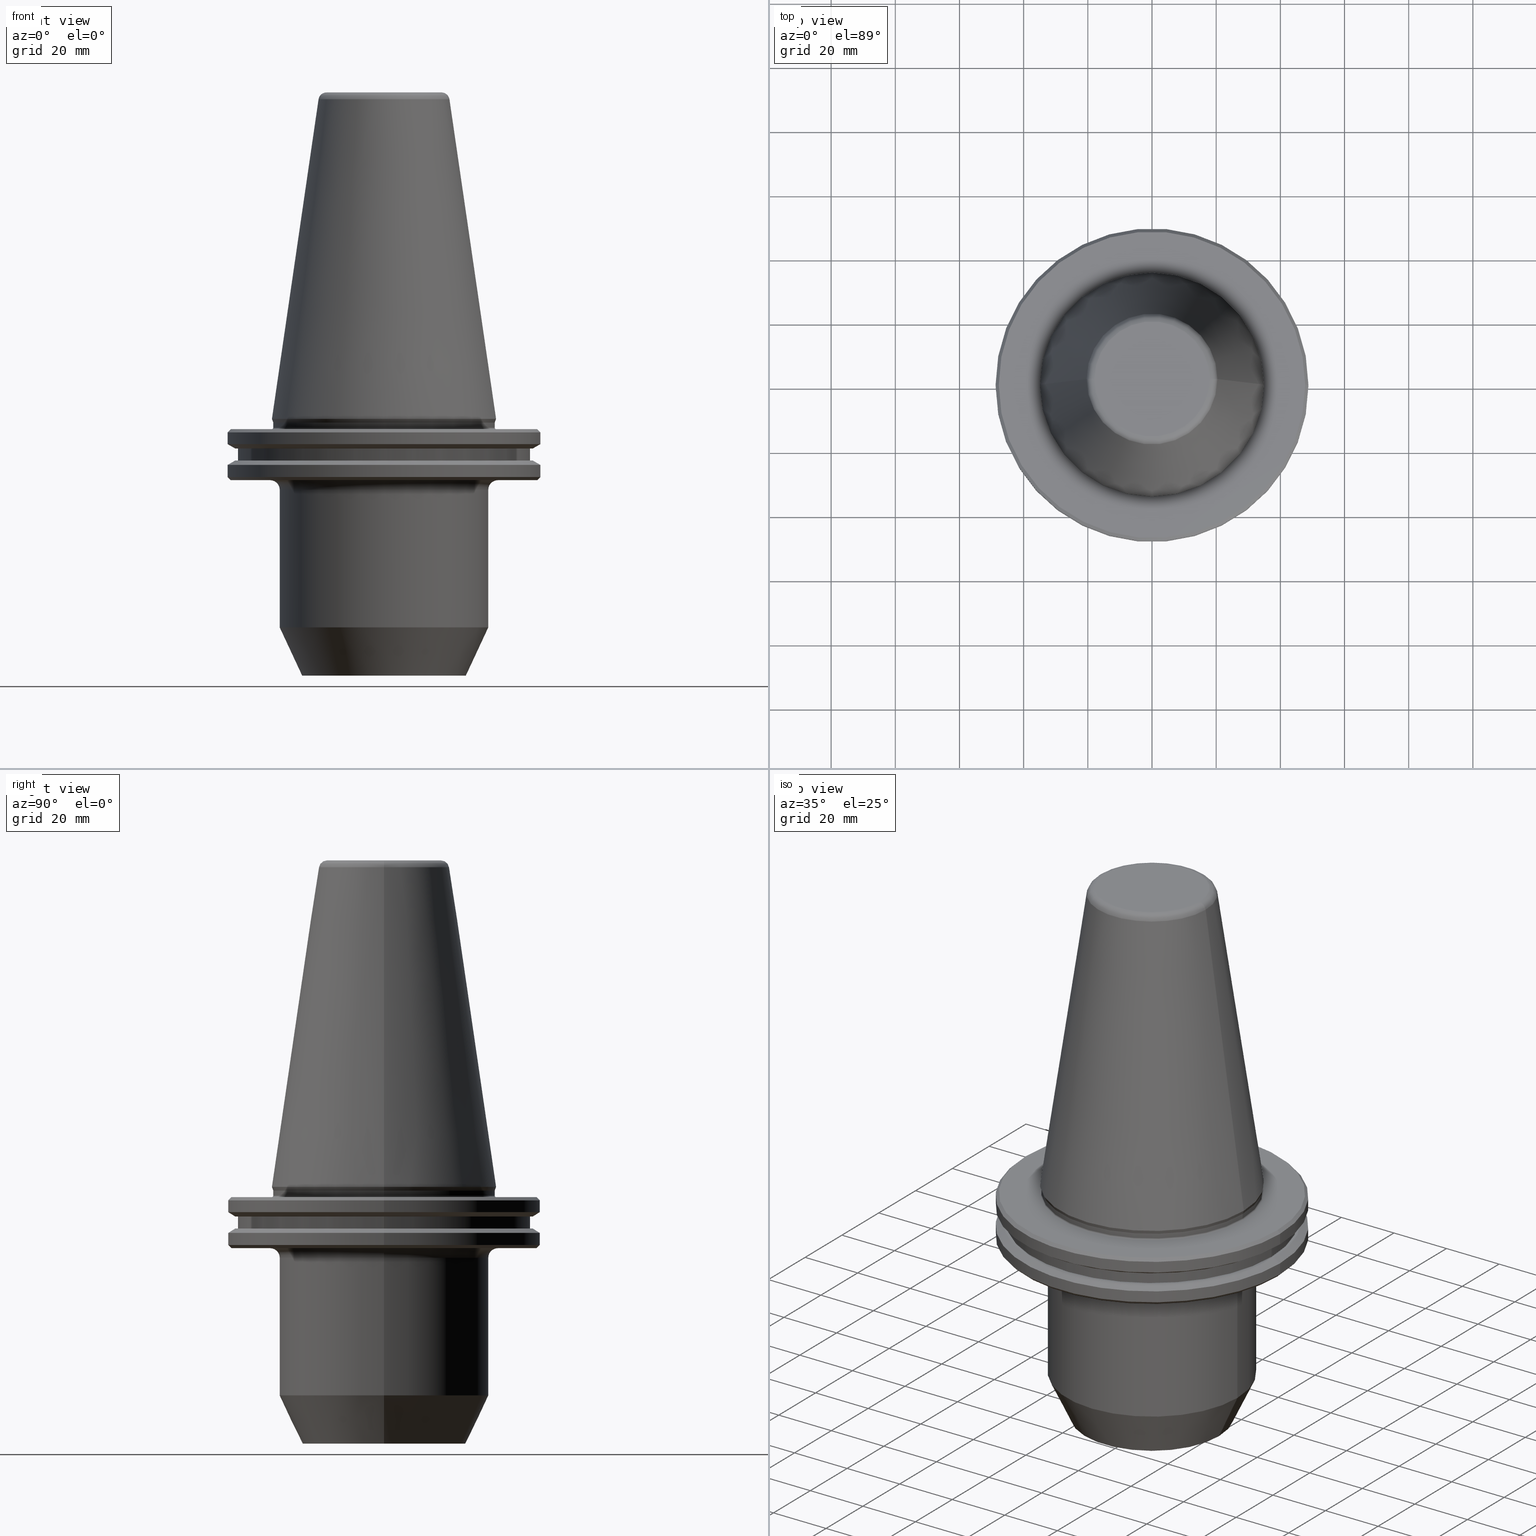
[diagram: canonical four-view strip — front | top / right | iso, engineering-drawing reading convention]
A machine part, canonical four-view strip (front | top / right | iso — engineering-drawing reading convention). The complete STEP part file that produces these views, byte-faithful:
ISO-10303-21;
HEADER;
FILE_DESCRIPTION (( 'STEP AP203' ),
    '1' );
FILE_NAME ('SK50 WE25 080 AD-6.3G15000 SL.STEP',
    '2019-04-30T05:21:31',
    ( '' ),
    ( '' ),
    'SwSTEP 2.0',
    'SolidWorks 2014',
    '' );
FILE_SCHEMA (( 'CONFIG_CONTROL_DESIGN' ));
ENDSEC;

DATA;
#1 = FACE_OUTER_BOUND ( 'NONE', #591, .T. ) ;
#2 = DIRECTION ( 'NONE',  ( 1.000000000000000000, 0.0000000000000000000, 0.0000000000000000000 ) ) ;
#3 = EDGE_LOOP ( 'NONE', ( #590, #41, #19, #282 ) ) ;
#4 = DIRECTION ( 'NONE',  ( 1.000000000000000000, 0.0000000000000000000, 0.0000000000000000000 ) ) ;
#5 = CARTESIAN_POINT ( 'NONE',  ( 0.0000000000000000000, 0.0000000000000000000, -19.09999999999995200 ) ) ;
#6 = EDGE_LOOP ( 'NONE', ( #436, #225, #797, #29 ) ) ;
#7 = DIRECTION ( 'NONE',  ( 1.000000000000000000, 0.0000000000000000000, 0.0000000000000000000 ) ) ;
#8 = ADVANCED_FACE ( 'NONE', ( #663 ), #669, .F. ) ;
#9 = DIRECTION ( 'NONE',  ( 1.000000000000000000, 0.0000000000000000000, 0.0000000000000000000 ) ) ;
#10 = CARTESIAN_POINT ( 'NONE',  ( 0.0000000000000000000, 0.0000000000000000000, -12.97500000000006900 ) ) ;
#11 = DIRECTION ( 'NONE',  ( -0.0000000000000000000, -0.0000000000000000000, 1.000000000000000000 ) ) ;
#12 = CIRCLE ( 'NONE', #231, 48.74999999999995700 ) ;
#13 = CIRCLE ( 'NONE', #919, 34.92500000000009700 ) ;
#14 = EDGE_LOOP ( 'NONE', ( #670, #494, #101, #904 ) ) ;
#15 = ORIENTED_EDGE ( 'NONE', *, *, #104, .T. ) ;
#16 = EDGE_CURVE ( 'NONE', #397, #152, #253, .T. ) ;
#17 = CARTESIAN_POINT ( 'NONE',  ( 0.0000000000000000000, 0.0000000000000000000, -5.551115123125782700E-014 ) ) ;
#18 = EDGE_CURVE ( 'NONE', #886, #219, #463, .T. ) ;
#19 = ORIENTED_EDGE ( 'NONE', *, *, #64, .T. ) ;
#20 = DIRECTION ( 'NONE',  ( 1.000000000000000000, 0.0000000000000000000, 0.0000000000000000000 ) ) ;
#21 = ADVANCED_FACE ( 'NONE', ( #852 ), #24, .T. ) ;
#22 = FACE_OUTER_BOUND ( 'NONE', #860, .T. ) ;
#23 = DIRECTION ( 'NONE',  ( -0.0000000000000000000, -0.0000000000000000000, 1.000000000000000000 ) ) ;
#24 = CYLINDRICAL_SURFACE ( 'NONE', #319, 34.49999999999985100 ) ;
#25 = CARTESIAN_POINT ( 'NONE',  ( 0.0000000000000000000, 0.0000000000000000000, -1.167677903268715700 ) ) ;
#26 = VERTEX_POINT ( 'NONE', #419 ) ;
#27 = ADVANCED_FACE ( 'NONE', ( #828 ), #617, .T. ) ;
#28 = DIRECTION ( 'NONE',  ( 1.000000000000000000, 0.0000000000000000000, 0.0000000000000000000 ) ) ;
#29 = ORIENTED_EDGE ( 'NONE', *, *, #914, .F. ) ;
#30 = DIRECTION ( 'NONE',  ( 0.0000000000000000000, 0.0000000000000000000, -1.000000000000000000 ) ) ;
#31 = DIRECTION ( 'NONE',  ( 0.0000000000000000000, 0.0000000000000000000, -1.000000000000000000 ) ) ;
#32 = DIRECTION ( 'NONE',  ( 1.000000000000000000, 0.0000000000000000000, 0.0000000000000000000 ) ) ;
#33 = TOROIDAL_SURFACE ( 'NONE', #244, 17.92446055806129500, 2.500000000000083000 ) ;
#34 = EDGE_CURVE ( 'NONE', #979, #373, #441, .T. ) ;
#35 = VECTOR ( 'NONE', #714, 1000.000000000000000 ) ;
#36 = ORIENTED_EDGE ( 'NONE', *, *, #138, .F. ) ;
#37 = CARTESIAN_POINT ( 'NONE',  ( 0.0000000000000000000, 0.0000000000000000000, -12.97500000000006900 ) ) ;
#38 = ORIENTED_EDGE ( 'NONE', *, *, #64, .F. ) ;
#39 = AXIS2_PLACEMENT_3D ( 'NONE', #74, #999, #466 ) ;
#40 = DIRECTION ( 'NONE',  ( 0.0000000000000000000, 0.0000000000000000000, -1.000000000000000000 ) ) ;
#41 = ORIENTED_EDGE ( 'NONE', *, *, #454, .F. ) ;
#42 =( GEOMETRIC_REPRESENTATION_CONTEXT ( 3 ) GLOBAL_UNCERTAINTY_ASSIGNED_CONTEXT ( ( #191 ) ) GLOBAL_UNIT_ASSIGNED_CONTEXT ( ( #826, #595, #128 ) ) REPRESENTATION_CONTEXT ( 'NONE', 'WORKASPACE' ) );
#43 = CONICAL_SURFACE ( 'NONE', #90, 48.74999999999995700, 0.7853981633974482800 ) ;
#44 = ADVANCED_FACE ( 'NONE', ( #423 ), #396, .T. ) ;
#45 = CARTESIAN_POINT ( 'NONE',  ( 0.0000000000000000000, 46.37259526419124000, -12.97500000000006900 ) ) ;
#46 = EDGE_CURVE ( 'NONE', #26, #899, #596, .T. ) ;
#47 = VECTOR ( 'NONE', #639, 1000.000000000000000 ) ;
#48 = VECTOR ( 'NONE', #939, 1000.000000000000000 ) ;
#49 = DIRECTION ( 'NONE',  ( 1.000000000000000000, 0.0000000000000000000, 0.0000000000000000000 ) ) ;
#50 = AXIS2_PLACEMENT_3D ( 'NONE', #701, #316, #410 ) ;
#51 = EDGE_LOOP ( 'NONE', ( #36, #815, #411, #761 ) ) ;
#52 = CARTESIAN_POINT ( 'NONE',  ( -34.49999999999975100, 4.225031457058343700E-015, -1.167677903268715700 ) ) ;
#53 = AXIS2_PLACEMENT_3D ( 'NONE', #312, #921, #692 ) ;
#54 = CARTESIAN_POINT ( 'NONE',  ( 34.99999999999992200, 0.0000000000000000000, -2.700000000000091200 ) ) ;
#55 = LOCAL_TIME ( 10, 51, 31.00000000000000000, #261 ) ;
#56 = ORIENTED_EDGE ( 'NONE', *, *, #162, .F. ) ;
#57 = FACE_OUTER_BOUND ( 'NONE', #233, .T. ) ;
#58 = DIRECTION ( 'NONE',  ( -0.0000000000000000000, -0.0000000000000000000, 1.000000000000000000 ) ) ;
#59 = LINE ( 'NONE', #916, #581 ) ;
#60 = ORIENTED_EDGE ( 'NONE', *, *, #864, .T. ) ;
#61 = DIRECTION ( 'NONE',  ( -0.0000000000000000000, -0.0000000000000000000, 1.000000000000000000 ) ) ;
#62 = EDGE_CURVE ( 'NONE', #485, #673, #208, .T. ) ;
#63 = DIRECTION ( 'NONE',  ( -0.1443082234293891500, 0.0000000000000000000, -0.9895327870518760800 ) ) ;
#64 = EDGE_CURVE ( 'NONE', #426, #433, #803, .T. ) ;
#65 = ORIENTED_EDGE ( 'NONE', *, *, #456, .F. ) ;
#66 = AXIS2_PLACEMENT_3D ( 'NONE', #947, #778, #770 ) ;
#67 = CIRCLE ( 'NONE', #656, 48.75000000000018500 ) ;
#68 = ADVANCED_FACE ( 'NONE', ( #1 ), #570, .T. ) ;
#69 = EDGE_CURVE ( 'NONE', #881, #638, #776, .T. ) ;
#70 = DIRECTION ( 'NONE',  ( -0.0000000000000000000, -0.0000000000000000000, 1.000000000000000000 ) ) ;
#71 = EDGE_LOOP ( 'NONE', ( #726, #389, #855, #204 ) ) ;
#72 = CARTESIAN_POINT ( 'NONE',  ( 0.0000000000000000000, 0.0000000000000000000, 101.7499999999999600 ) ) ;
#73 = CARTESIAN_POINT ( 'NONE',  ( 0.0000000000000000000, 0.0000000000000000000, -1.167677903268715700 ) ) ;
#74 = CARTESIAN_POINT ( 'NONE',  ( 35.50000000000000700, 0.0000000000000000000, -22.09999999999995200 ) ) ;
#75 = ORIENTED_EDGE ( 'NONE', *, *, #336, .T. ) ;
#76 = CARTESIAN_POINT ( 'NONE',  ( 47.74999999999973700, 0.0000000000000000000, -19.09999999999995200 ) ) ;
#77 = ORIENTED_EDGE ( 'NONE', *, *, #816, .T. ) ;
#78 = DIRECTION ( 'NONE',  ( 1.000000000000000000, 0.0000000000000000000, 0.0000000000000000000 ) ) ;
#79 = ADVANCED_FACE ( 'NONE', ( #977 ), #187, .F. ) ;
#80 = CALENDAR_DATE ( 2019, 30, 4 ) ;
#81 = FACE_OUTER_BOUND ( 'NONE', #445, .T. ) ;
#82 = DIRECTION ( 'NONE',  ( 1.000000000000000000, 0.0000000000000000000, 0.0000000000000000000 ) ) ;
#83 = FACE_OUTER_BOUND ( 'NONE', #799, .T. ) ;
#84 = DIRECTION ( 'NONE',  ( 1.000000000000000000, 0.0000000000000000000, 0.0000000000000000000 ) ) ;
#85 = VERTEX_POINT ( 'NONE', #814 ) ;
#86 = ADVANCED_FACE ( 'NONE', ( #751 ), #548, .T. ) ;
#87 = DIRECTION ( 'NONE',  ( 1.000000000000000000, 0.0000000000000000000, 0.0000000000000000000 ) ) ;
#88 = EDGE_CURVE ( 'NONE', #673, #485, #228, .T. ) ;
#89 = CARTESIAN_POINT ( 'NONE',  ( -32.50000000000000000, 3.980102097228898600E-015, -64.98845155643312000 ) ) ;
#90 = AXIS2_PLACEMENT_3D ( 'NONE', #628, #40, #394 ) ;
#91 = CARTESIAN_POINT ( 'NONE',  ( 0.0000000000000000000, 0.0000000000000000000, -5.551115123125782700E-014 ) ) ;
#92 = DIRECTION ( 'NONE',  ( 0.8660254037844393700, 1.060575238724907800E-016, -0.4999999999999985000 ) ) ;
#93 = VECTOR ( 'NONE', #475, 1000.000000000000100 ) ;
#94 = FACE_OUTER_BOUND ( 'NONE', #703, .T. ) ;
#95 = VERTEX_POINT ( 'NONE', #787 ) ;
#96 = ADVANCED_FACE ( 'NONE', ( #345 ), #957, .T. ) ;
#97 = CARTESIAN_POINT ( 'NONE',  ( -47.74999999999973700, 5.847688465928579700E-015, -19.09999999999995200 ) ) ;
#98 = ORIENTED_EDGE ( 'NONE', *, *, #383, .T. ) ;
#99 = ADVANCED_FACE ( 'NONE', ( #371 ), #108, .T. ) ;
#100 = AXIS2_PLACEMENT_3D ( 'NONE', #856, #696, #874 ) ;
#101 = ORIENTED_EDGE ( 'NONE', *, *, #843, .F. ) ;
#102 = DIRECTION ( 'NONE',  ( -0.0000000000000000000, -0.0000000000000000000, 1.000000000000000000 ) ) ;
#103 = ORIENTED_EDGE ( 'NONE', *, *, #594, .F. ) ;
#104 = EDGE_CURVE ( 'NONE', #771, #618, #523, .T. ) ;
#105 = PERSON_AND_ORGANIZATION ( #238, #420 ) ;
#106 = VECTOR ( 'NONE', #483, 1000.000000000000000 ) ;
#107 = ADVANCED_FACE ( 'NONE', ( #132 ), #710, .T. ) ;
#108 = CONICAL_SURFACE ( 'NONE', #340, 25.50000000000000000, 0.4363323129985837200 ) ;
#109 = AXIS2_PLACEMENT_3D ( 'NONE', #5, #836, #163 ) ;
#110 = CARTESIAN_POINT ( 'NONE',  ( 0.0000000000000000000, 0.0000000000000000000, -4.199999999999870500 ) ) ;
#111 = ORIENTED_EDGE ( 'NONE', *, *, #880, .T. ) ;
#112 = CARTESIAN_POINT ( 'NONE',  ( 0.0000000000000000000, 0.0000000000000000000, 99.61077055857353500 ) ) ;
#113 = CARTESIAN_POINT ( 'NONE',  ( 25.50000000000000000, 0.0000000000000000000, -79.99999999999998600 ) ) ;
#114 = DIRECTION ( 'NONE',  ( 0.0000000000000000000, -1.000000000000000000, 0.0000000000000000000 ) ) ;
#115 = DIRECTION ( 'NONE',  ( 1.000000000000000000, 0.0000000000000000000, 0.0000000000000000000 ) ) ;
#116 = ADVANCED_FACE ( 'NONE', ( #315, #158 ), #924, .F. ) ;
#117 = CIRCLE ( 'NONE', #122, 48.75000000000018500 ) ;
#118 = EDGE_CURVE ( 'NONE', #881, #564, #500, .T. ) ;
#119 = FACE_OUTER_BOUND ( 'NONE', #996, .T. ) ;
#120 = VERTEX_POINT ( 'NONE', #464 ) ;
#121 = PLANE ( 'NONE',  #262 ) ;
#122 = AXIS2_PLACEMENT_3D ( 'NONE', #980, #135, #446 ) ;
#123 = EDGE_CURVE ( 'NONE', #971, #667, #932, .T. ) ;
#124 = ORIENTED_EDGE ( 'NONE', *, *, #830, .F. ) ;
#125 = ORIENTED_EDGE ( 'NONE', *, *, #358, .T. ) ;
#126 = DIRECTION ( 'NONE',  ( -0.0000000000000000000, -0.0000000000000000000, 1.000000000000000000 ) ) ;
#127 = AXIS2_PLACEMENT_3D ( 'NONE', #37, #953, #851 ) ;
#128 =( NAMED_UNIT ( * ) SI_UNIT ( $, .STERADIAN. ) SOLID_ANGLE_UNIT ( ) );
#129 = COORDINATED_UNIVERSAL_TIME_OFFSET ( 5, 30, .AHEAD. ) ;
#130 = CONICAL_SURFACE ( 'NONE', #331, 46.37259526419079900, 1.047197551196604700 ) ;
#131 = DIRECTION ( 'NONE',  ( 1.000000000000000000, 0.0000000000000000000, 0.0000000000000000000 ) ) ;
#132 = FACE_OUTER_BOUND ( 'NONE', #173, .T. ) ;
#133 = ORIENTED_EDGE ( 'NONE', *, *, #414, .F. ) ;
#134 = ADVANCED_BREP_SHAPE_REPRESENTATION ( 'SK50 WE25 080 AD-6.3G15000 SL', ( #626, #784 ), #42 ) ;
#135 = DIRECTION ( 'NONE',  ( -0.0000000000000000000, -0.0000000000000000000, 1.000000000000000000 ) ) ;
#136 = CARTESIAN_POINT ( 'NONE',  ( 48.75000000000018500, 0.0000000000000000000, 101.7499999999999600 ) ) ;
#137 = MECHANICAL_CONTEXT ( 'NONE', #370, 'mechanical' ) ;
#138 = EDGE_CURVE ( 'NONE', #85, #120, #911, .T. ) ;
#139 = ADVANCED_FACE ( 'NONE', ( #83 ), #266, .T. ) ;
#140 = EDGE_CURVE ( 'NONE', #771, #426, #479, .T. ) ;
#141 = CIRCLE ( 'NONE', #165, 34.49999999999995000 ) ;
#142 = CLOSED_SHELL ( 'NONE', ( #405, #350, #290, #96, #182, #641, #21, #79, #44, #86, #541, #139, #779, #649, #380, #611, #8, #511, #27, #385, #664, #159, #348, #708, #416, #984, #116, #802, #107, #429, #357, #764, #68, #99, #690, #978 ) ) ;
#143 = DIRECTION ( 'NONE',  ( 1.000000000000000000, 0.0000000000000000000, 0.0000000000000000000 ) ) ;
#144 = FACE_OUTER_BOUND ( 'NONE', #267, .T. ) ;
#145 = ORIENTED_EDGE ( 'NONE', *, *, #905, .F. ) ;
#146 = DIRECTION ( 'NONE',  ( -0.0000000000000000000, -0.0000000000000000000, 1.000000000000000000 ) ) ;
#147 = AXIS2_PLACEMENT_3D ( 'NONE', #151, #773, #964 ) ;
#148 = CARTESIAN_POINT ( 'NONE',  ( -46.37259526419079900, 5.679005035844697300E-015, -9.224999999999926800 ) ) ;
#149 = AXIS2_PLACEMENT_3D ( 'NONE', #213, #672, #131 ) ;
#150 = ORIENTED_EDGE ( 'NONE', *, *, #414, .T. ) ;
#151 = CARTESIAN_POINT ( 'NONE',  ( 0.0000000000000000000, 0.0000000000000000000, -2.700000000000091200 ) ) ;
#152 = VERTEX_POINT ( 'NONE', #868 ) ;
#153 = DIRECTION ( 'NONE',  ( -0.0000000000000000000, -0.0000000000000000000, 1.000000000000000000 ) ) ;
#154 = AXIS2_PLACEMENT_3D ( 'NONE', #54, #526, #982 ) ;
#155 = LOCAL_TIME ( 10, 51, 31.00000000000000000, #368 ) ;
#156 = DIRECTION ( 'NONE',  ( 1.000000000000000000, 0.0000000000000000000, 0.0000000000000000000 ) ) ;
#157 = CIRCLE ( 'NONE', #512, 32.50000000000000000 ) ;
#158 = FACE_OUTER_BOUND ( 'NONE', #583, .T. ) ;
#159 = ADVANCED_FACE ( 'NONE', ( #891 ), #652, .T. ) ;
#160 = ORIENTED_EDGE ( 'NONE', *, *, #175, .F. ) ;
#161 = DIRECTION ( 'NONE',  ( 1.000000000000000000, 0.0000000000000000000, 0.0000000000000000000 ) ) ;
#162 = EDGE_CURVE ( 'NONE', #342, #407, #866, .T. ) ;
#163 = DIRECTION ( 'NONE',  ( 1.000000000000000000, 0.0000000000000000000, 0.0000000000000000000 ) ) ;
#164 = DIRECTION ( 'NONE',  ( 1.224646799147353200E-016, 1.000000000000000000, 0.0000000000000000000 ) ) ;
#165 = AXIS2_PLACEMENT_3D ( 'NONE', #435, #970, #359 ) ;
#166 = CARTESIAN_POINT ( 'NONE',  ( -47.74999999999973700, 5.908920805885974100E-015, -19.09999999999995200 ) ) ;
#167 = DIRECTION ( 'NONE',  ( -0.0000000000000000000, -0.0000000000000000000, 1.000000000000000000 ) ) ;
#168 = CARTESIAN_POINT ( 'NONE',  ( 48.75000000000018500, 5.970153145843369200E-015, -14.34759526419204800 ) ) ;
#169 = CIRCLE ( 'NONE', #198, 3.000000000000002700 ) ;
#170 = DIRECTION ( 'NONE',  ( 1.000000000000000000, 0.0000000000000000000, 0.0000000000000000000 ) ) ;
#171 = LINE ( 'NONE', #497, #355 ) ;
#172 = CARTESIAN_POINT ( 'NONE',  ( 0.0000000000000000000, 0.0000000000000000000, -1.167677903268715700 ) ) ;
#173 = EDGE_LOOP ( 'NONE', ( #609, #60, #920, #327 ) ) ;
#174 = CARTESIAN_POINT ( 'NONE',  ( -32.50000000000000000, 3.980102097228898600E-015, -22.09999999999995200 ) ) ;
#175 = EDGE_CURVE ( 'NONE', #536, #612, #678, .T. ) ;
#176 = AXIS2_PLACEMENT_3D ( 'NONE', #584, #657, #505 ) ;
#177 = EDGE_LOOP ( 'NONE', ( #291, #489, #77, #229 ) ) ;
#178 = VERTEX_POINT ( 'NONE', #552 ) ;
#179 = DIRECTION ( 'NONE',  ( -0.0000000000000000000, -0.0000000000000000000, 1.000000000000000000 ) ) ;
#180 = DIRECTION ( 'NONE',  ( 1.000000000000000000, 0.0000000000000000000, 0.0000000000000000000 ) ) ;
#181 = ORIENTED_EDGE ( 'NONE', *, *, #69, .F. ) ;
#182 = ADVANCED_FACE ( 'NONE', ( #450 ), #430, .T. ) ;
#183 = CALENDAR_DATE ( 2019, 30, 4 ) ;
#184 = AXIS2_PLACEMENT_3D ( 'NONE', #269, #114, #895 ) ;
#185 = CARTESIAN_POINT ( 'NONE',  ( 0.0000000000000000000, 0.0000000000000000000, -4.199999999999870500 ) ) ;
#186 = LINE ( 'NONE', #785, #106 ) ;
#187 = TOROIDAL_SURFACE ( 'NONE', #147, 34.99999999999992200, 0.4999999999999726900 ) ;
#188 = VERTEX_POINT ( 'NONE', #527 ) ;
#189 = CARTESIAN_POINT ( 'NONE',  ( -34.49999999999985100, 4.225031457058350000E-015, 101.7499999999999600 ) ) ;
#190 = DIRECTION ( 'NONE',  ( -0.0000000000000000000, -0.0000000000000000000, 1.000000000000000000 ) ) ;
#191 = UNCERTAINTY_MEASURE_WITH_UNIT (LENGTH_MEASURE( 1.000000000000000100E-005 ), #826, 'distance_accuracy_value', 'NONE');
#192 = VERTEX_POINT ( 'NONE', #113 ) ;
#193 = CC_DESIGN_PERSON_AND_ORGANIZATION_ASSIGNMENT ( #105, #798, ( #636 ) ) ;
#194 = DIRECTION ( 'NONE',  ( -0.0000000000000000000, -0.0000000000000000000, 1.000000000000000000 ) ) ;
#195 = EDGE_CURVE ( 'NONE', #152, #899, #630, .T. ) ;
#196 = TOROIDAL_SURFACE ( 'NONE', #215, 34.99999999999992200, 0.4999999999999726900 ) ;
#197 = CIRCLE ( 'NONE', #839, 45.50000000000020600 ) ;
#198 = AXIS2_PLACEMENT_3D ( 'NONE', #738, #503, #579 ) ;
#199 = CARTESIAN_POINT ( 'NONE',  ( 35.50000000000000700, 0.0000000000000000000, -19.09999999999995200 ) ) ;
#200 = EDGE_LOOP ( 'NONE', ( #949, #513, #967, #145 ) ) ;
#201 = AXIS2_PLACEMENT_3D ( 'NONE', #112, #194, #32 ) ;
#202 = DATE_TIME_ROLE ( 'creation_date' ) ;
#203 = CARTESIAN_POINT ( 'NONE',  ( 48.74999999999995700, 5.970153145843342400E-015, -4.199999999999870500 ) ) ;
#204 = ORIENTED_EDGE ( 'NONE', *, *, #493, .F. ) ;
#205 = EDGE_LOOP ( 'NONE', ( #469, #243 ) ) ;
#206 = PERSON_AND_ORGANIZATION ( #238, #420 ) ;
#207 = CIRCLE ( 'NONE', #610, 32.50000000000000000 ) ;
#208 = CIRCLE ( 'NONE', #360, 46.37259526419124000 ) ;
#209 = ORIENTED_EDGE ( 'NONE', *, *, #923, .T. ) ;
#210 = AXIS2_PLACEMENT_3D ( 'NONE', #10, #702, #322 ) ;
#211 = DIRECTION ( 'NONE',  ( -0.8660254037844421500, 1.060575238724911200E-016, 0.4999999999999939500 ) ) ;
#212 = ORIENTED_EDGE ( 'NONE', *, *, #456, .T. ) ;
#213 = CARTESIAN_POINT ( 'NONE',  ( 0.0000000000000000000, 0.0000000000000000000, -19.09999999999995200 ) ) ;
#214 = PRODUCT_DEFINITION_SHAPE ( 'NONE', 'NONE',  #506 ) ;
#215 = AXIS2_PLACEMENT_3D ( 'NONE', #846, #297, #221 ) ;
#216 = CARTESIAN_POINT ( 'NONE',  ( 34.49999999999975100, 0.0000000000000000000, -1.167677903268715700 ) ) ;
#217 = VECTOR ( 'NONE', #562, 1000.000000000000000 ) ;
#218 = LINE ( 'NONE', #913, #813 ) ;
#219 = VERTEX_POINT ( 'NONE', #983 ) ;
#220 = ORIENTED_EDGE ( 'NONE', *, *, #454, .T. ) ;
#221 = DIRECTION ( 'NONE',  ( 1.000000000000000000, 0.0000000000000000000, 0.0000000000000000000 ) ) ;
#222 = CARTESIAN_POINT ( 'NONE',  ( 0.0000000000000000000, 0.0000000000000000000, -22.09999999999995200 ) ) ;
#223 = CARTESIAN_POINT ( 'NONE',  ( 0.0000000000000000000, 0.0000000000000000000, 99.25000000000000000 ) ) ;
#224 = AXIS2_PLACEMENT_3D ( 'NONE', #110, #960, #735 ) ;
#225 = ORIENTED_EDGE ( 'NONE', *, *, #594, .T. ) ;
#226 = CIRCLE ( 'NONE', #565, 20.39829252569114000 ) ;
#227 = PLANE ( 'NONE',  #387 ) ;
#228 = CIRCLE ( 'NONE', #127, 46.37259526419124000 ) ;
#229 = ORIENTED_EDGE ( 'NONE', *, *, #374, .T. ) ;
#230 = CARTESIAN_POINT ( 'NONE',  ( 0.0000000000000000000, 46.37259526419079900, -9.224999999999926800 ) ) ;
#231 = AXIS2_PLACEMENT_3D ( 'NONE', #459, #918, #382 ) ;
#232 = DIRECTION ( 'NONE',  ( -0.0000000000000000000, -0.0000000000000000000, 1.000000000000000000 ) ) ;
#233 = EDGE_LOOP ( 'NONE', ( #418, #572 ) ) ;
#234 = CARTESIAN_POINT ( 'NONE',  ( 0.0000000000000000000, 0.0000000000000000000, 101.7499999999999600 ) ) ;
#235 = ORIENTED_EDGE ( 'NONE', *, *, #298, .T. ) ;
#236 = APPLICATION_CONTEXT ( 'configuration controlled 3d designs of mechanical parts and assemblies' ) ;
#237 = LINE ( 'NONE', #717, #449 ) ;
#238 = PERSON ( 'UNSPECIFIED', 'UNSPECIFIED', 'UNSPECIFIED', ('UNSPECIFIED'), ('UNSPECIFIED'), ('UNSPECIFIED') ) ;
#239 = CARTESIAN_POINT ( 'NONE',  ( 0.0000000000000000000, 0.0000000000000000000, 101.7499999999999600 ) ) ;
#240 = CIRCLE ( 'NONE', #908, 34.49999999999975100 ) ;
#241 = ORIENTED_EDGE ( 'NONE', *, *, #374, .F. ) ;
#242 = EDGE_CURVE ( 'NONE', #192, #248, #838, .T. ) ;
#243 = ORIENTED_EDGE ( 'NONE', *, *, #358, .F. ) ;
#244 = AXIS2_PLACEMENT_3D ( 'NONE', #223, #934, #472 ) ;
#245 = DIRECTION ( 'NONE',  ( 1.000000000000000000, 0.0000000000000000000, 0.0000000000000000000 ) ) ;
#246 = EDGE_CURVE ( 'NONE', #447, #258, #240, .T. ) ;
#247 = DIRECTION ( 'NONE',  ( 1.000000000000000000, 0.0000000000000000000, 0.0000000000000000000 ) ) ;
#248 = VERTEX_POINT ( 'NONE', #451 ) ;
#249 = ORIENTED_EDGE ( 'NONE', *, *, #294, .F. ) ;
#250 = CARTESIAN_POINT ( 'NONE',  ( -48.75000000000018500, 5.970153145843369200E-015, -18.09999999999950400 ) ) ;
#251 = CONICAL_SURFACE ( 'NONE', #647, 48.75000000000018500, 1.047197551196599400 ) ;
#252 = DIRECTION ( 'NONE',  ( -0.0000000000000000000, -0.0000000000000000000, 1.000000000000000000 ) ) ;
#253 = CIRCLE ( 'NONE', #962, 48.75000000000018500 ) ;
#254 = DIRECTION ( 'NONE',  ( -0.0000000000000000000, -0.0000000000000000000, 1.000000000000000000 ) ) ;
#255 = EDGE_LOOP ( 'NONE', ( #563, #946, #111, #892 ) ) ;
#256 = DIRECTION ( 'NONE',  ( 0.0000000000000000000, 0.0000000000000000000, -1.000000000000000000 ) ) ;
#257 = AXIS2_PLACEMENT_3D ( 'NONE', #635, #365, #328 ) ;
#258 = VERTEX_POINT ( 'NONE', #216 ) ;
#259 = EDGE_CURVE ( 'NONE', #544, #766, #289, .T. ) ;
#260 = VERTEX_POINT ( 'NONE', #470 ) ;
#261 = COORDINATED_UNIVERSAL_TIME_OFFSET ( 5, 30, .AHEAD. ) ;
#262 = AXIS2_PLACEMENT_3D ( 'NONE', #386, #303, #688 ) ;
#263 = ORIENTED_EDGE ( 'NONE', *, *, #894, .F. ) ;
#264 = CONICAL_SURFACE ( 'NONE', #353, 34.49999999999975100, 0.3490658503990017300 ) ;
#265 = SECURITY_CLASSIFICATION ( '', '', #973 ) ;
#266 = CYLINDRICAL_SURFACE ( 'NONE', #1001, 45.50000000000020600 ) ;
#267 = EDGE_LOOP ( 'NONE', ( #631, #944 ) ) ;
#268 = DIRECTION ( 'NONE',  ( -0.0000000000000000000, -0.0000000000000000000, 1.000000000000000000 ) ) ;
#269 = CARTESIAN_POINT ( 'NONE',  ( 17.92446055806129500, 0.0000000000000000000, 99.25000000000000000 ) ) ;
#270 = EDGE_LOOP ( 'NONE', ( #133, #933, #212, #809 ) ) ;
#271 = LINE ( 'NONE', #97, #47 ) ;
#272 = AXIS2_PLACEMENT_3D ( 'NONE', #277, #942, #9 ) ;
#273 = DATE_TIME_ROLE ( 'classification_date' ) ;
#274 = CC_DESIGN_DATE_AND_TIME_ASSIGNMENT ( #889, #273, ( #265 ) ) ;
#275 = EDGE_LOOP ( 'NONE', ( #491, #276 ) ) ;
#276 = ORIENTED_EDGE ( 'NONE', *, *, #62, .T. ) ;
#277 = CARTESIAN_POINT ( 'NONE',  ( 0.0000000000000000000, 0.0000000000000000000, -9.224999999999926800 ) ) ;
#278 = PERSON_AND_ORGANIZATION_ROLE ( 'creator' ) ;
#279 = DIRECTION ( 'NONE',  ( -1.000000000000000000, 0.0000000000000000000, -0.0000000000000000000 ) ) ;
#280 = CARTESIAN_POINT ( 'NONE',  ( 0.0000000000000000000, 0.0000000000000000000, -7.852404735807838600 ) ) ;
#281 = AXIS2_PLACEMENT_3D ( 'NONE', #45, #995, #968 ) ;
#282 = ORIENTED_EDGE ( 'NONE', *, *, #493, .T. ) ;
#283 = DIRECTION ( 'NONE',  ( -0.0000000000000000000, -0.0000000000000000000, 1.000000000000000000 ) ) ;
#284 = ORIENTED_EDGE ( 'NONE', *, *, #88, .F. ) ;
#285 = DIRECTION ( 'NONE',  ( -0.0000000000000000000, -0.0000000000000000000, 1.000000000000000000 ) ) ;
#286 = EDGE_CURVE ( 'NONE', #248, #979, #218, .T. ) ;
#287 = LOCAL_TIME ( 10, 51, 31.00000000000000000, #498 ) ;
#288 = CYLINDRICAL_SURFACE ( 'NONE', #295, 48.75000000000018500 ) ;
#289 = CIRCLE ( 'NONE', #896, 45.50000000000020600 ) ;
#290 = ADVANCED_FACE ( 'NONE', ( #409 ), #987, .T. ) ;
#291 = ORIENTED_EDGE ( 'NONE', *, *, #575, .F. ) ;
#292 = DIRECTION ( 'NONE',  ( -0.0000000000000000000, -0.0000000000000000000, 1.000000000000000000 ) ) ;
#293 = DIRECTION ( 'NONE',  ( -1.000000000000000000, 0.0000000000000000000, 0.0000000000000000000 ) ) ;
#294 = EDGE_CURVE ( 'NONE', #766, #544, #197, .T. ) ;
#295 = AXIS2_PLACEMENT_3D ( 'NONE', #72, #922, #926 ) ;
#296 = AXIS2_PLACEMENT_3D ( 'NONE', #833, #697, #279 ) ;
#297 = DIRECTION ( 'NONE',  ( -0.0000000000000000000, -0.0000000000000000000, 1.000000000000000000 ) ) ;
#298 = EDGE_CURVE ( 'NONE', #260, #95, #13, .T. ) ;
#299 = CIRCLE ( 'NONE', #109, 35.50000000000000700 ) ;
#300 = CONICAL_SURFACE ( 'NONE', #768, 25.50000000000000000, 0.4363323129985837200 ) ;
#301 = ORIENTED_EDGE ( 'NONE', *, *, #259, .T. ) ;
#302 = AXIS2_PLACEMENT_3D ( 'NONE', #234, #598, #810 ) ;
#303 = DIRECTION ( 'NONE',  ( 0.0000000000000000000, -0.0000000000000000000, 1.000000000000000000 ) ) ;
#304 = AXIS2_PLACEMENT_3D ( 'NONE', #337, #792, #247 ) ;
#305 = EDGE_CURVE ( 'NONE', #407, #618, #59, .T. ) ;
#306 = DIRECTION ( 'NONE',  ( 1.000000000000000000, 0.0000000000000000000, 0.0000000000000000000 ) ) ;
#307 = VERTEX_POINT ( 'NONE', #884 ) ;
#308 = CARTESIAN_POINT ( 'NONE',  ( 0.0000000000000000000, 47.74999999999973700, -19.09999999999995200 ) ) ;
#309 = AXIS2_PLACEMENT_3D ( 'NONE', #679, #931, #871 ) ;
#310 = ORIENTED_EDGE ( 'NONE', *, *, #525, .T. ) ;
#311 = APPROVAL_DATE_TIME ( #519, #695 ) ;
#312 = CARTESIAN_POINT ( 'NONE',  ( 0.0000000000000000000, 0.0000000000000000000, 99.25000000000000000 ) ) ;
#313 = FACE_OUTER_BOUND ( 'NONE', #832, .T. ) ;
#314 = EDGE_CURVE ( 'NONE', #342, #433, #788, .T. ) ;
#315 = FACE_BOUND ( 'NONE', #205, .T. ) ;
#316 = DIRECTION ( 'NONE',  ( -0.0000000000000000000, -0.0000000000000000000, 1.000000000000000000 ) ) ;
#317 = ORIENTED_EDGE ( 'NONE', *, *, #242, .T. ) ;
#318 = CARTESIAN_POINT ( 'NONE',  ( 0.0000000000000000000, 0.0000000000000000000, -19.09999999999995200 ) ) ;
#319 = AXIS2_PLACEMENT_3D ( 'NONE', #372, #102, #399 ) ;
#320 = CARTESIAN_POINT ( 'NONE',  ( 32.50000000000000000, 0.0000000000000000000, -64.98845155643312000 ) ) ;
#321 = CARTESIAN_POINT ( 'NONE',  ( 45.50000000000020600, 0.0000000000000000000, -12.97500000000006900 ) ) ;
#322 = DIRECTION ( 'NONE',  ( 1.000000000000000000, 0.0000000000000000000, 0.0000000000000000000 ) ) ;
#323 = DIRECTION ( 'NONE',  ( -0.3420201433257963300, 4.188538737678555300E-017, 0.9396926207858620200 ) ) ;
#324 = VECTOR ( 'NONE', #509, 1000.000000000000000 ) ;
#325 = DIRECTION ( 'NONE',  ( -0.0000000000000000000, -0.0000000000000000000, 1.000000000000000000 ) ) ;
#326 = FACE_OUTER_BOUND ( 'NONE', #177, .T. ) ;
#327 = ORIENTED_EDGE ( 'NONE', *, *, #246, .F. ) ;
#328 = DIRECTION ( 'NONE',  ( -1.000000000000000000, 0.0000000000000000000, 0.0000000000000000000 ) ) ;
#329 = EDGE_CURVE ( 'NONE', #564, #373, #378, .T. ) ;
#330 = CARTESIAN_POINT ( 'NONE',  ( 0.0000000000000000000, 0.0000000000000000000, -22.09999999999995200 ) ) ;
#331 = AXIS2_PLACEMENT_3D ( 'NONE', #936, #404, #553 ) ;
#332 = ORIENTED_EDGE ( 'NONE', *, *, #794, .F. ) ;
#333 = DIRECTION ( 'NONE',  ( -0.0000000000000000000, -0.0000000000000000000, 1.000000000000000000 ) ) ;
#334 = EDGE_CURVE ( 'NONE', #188, #886, #760, .T. ) ;
#335 = DIRECTION ( 'NONE',  ( 1.000000000000000000, 0.0000000000000000000, 0.0000000000000000000 ) ) ;
#336 = EDGE_CURVE ( 'NONE', #971, #544, #171, .T. ) ;
#337 = CARTESIAN_POINT ( 'NONE',  ( 0.0000000000000000000, 0.0000000000000000000, 101.7500000000000900 ) ) ;
#338 = ORIENTED_EDGE ( 'NONE', *, *, #140, .F. ) ;
#339 = DIRECTION ( 'NONE',  ( 1.000000000000000000, 0.0000000000000000000, 0.0000000000000000000 ) ) ;
#340 = AXIS2_PLACEMENT_3D ( 'NONE', #484, #412, #388 ) ;
#341 = CARTESIAN_POINT ( 'NONE',  ( 0.0000000000000000000, 0.0000000000000000000, -22.09999999999995200 ) ) ;
#342 = VERTEX_POINT ( 'NONE', #530 ) ;
#343 = APPROVAL_PERSON_ORGANIZATION ( #545, #695, #366 ) ;
#344 = CIRCLE ( 'NONE', #304, 17.92446055806129500 ) ;
#345 = FACE_OUTER_BOUND ( 'NONE', #632, .T. ) ;
#346 = CARTESIAN_POINT ( 'NONE',  ( 0.0000000000000000000, 0.0000000000000000000, -19.09999999999995200 ) ) ;
#347 = ORIENTED_EDGE ( 'NONE', *, *, #18, .T. ) ;
#348 = ADVANCED_FACE ( 'NONE', ( #144, #603 ), #781, .F. ) ;
#349 = EDGE_CURVE ( 'NONE', #85, #447, #535, .T. ) ;
#350 = ADVANCED_FACE ( 'NONE', ( #943 ), #300, .T. ) ;
#351 = EDGE_CURVE ( 'NONE', #307, #120, #508, .T. ) ;
#352 = CARTESIAN_POINT ( 'NONE',  ( 0.0000000000000000000, 0.0000000000000000000, -19.09999999999995200 ) ) ;
#353 = AXIS2_PLACEMENT_3D ( 'NONE', #73, #232, #465 ) ;
#354 = CIRCLE ( 'NONE', #176, 34.49999999999975100 ) ;
#355 = VECTOR ( 'NONE', #574, 1000.000000000000000 ) ;
#356 = VERTEX_POINT ( 'NONE', #559 ) ;
#357 = ADVANCED_FACE ( 'NONE', ( #326 ), #687, .T. ) ;
#358 = EDGE_CURVE ( 'NONE', #120, #307, #898, .T. ) ;
#359 = DIRECTION ( 'NONE',  ( 1.000000000000000000, 0.0000000000000000000, 0.0000000000000000000 ) ) ;
#360 = AXIS2_PLACEMENT_3D ( 'NONE', #709, #928, #4 ) ;
#361 = APPROVAL_STATUS ( 'not_yet_approved' ) ;
#362 = ORIENTED_EDGE ( 'NONE', *, *, #794, .T. ) ;
#363 = APPROVAL ( #361, 'UNSPECIFIED' ) ;
#364 = DESIGN_CONTEXT ( 'detailed design', #236, 'design' ) ;
#365 = DIRECTION ( 'NONE',  ( 0.0000000000000000000, 0.0000000000000000000, -1.000000000000000000 ) ) ;
#366 = APPROVAL_ROLE ( '' ) ;
#367 = ORIENTED_EDGE ( 'NONE', *, *, #329, .T. ) ;
#368 = COORDINATED_UNIVERSAL_TIME_OFFSET ( 5, 30, .AHEAD. ) ;
#369 = CIRCLE ( 'NONE', #495, 46.37259526419079900 ) ;
#370 = APPLICATION_CONTEXT ( 'configuration controlled 3d designs of mechanical parts and assemblies' ) ;
#371 = FACE_OUTER_BOUND ( 'NONE', #623, .T. ) ;
#372 = CARTESIAN_POINT ( 'NONE',  ( 0.0000000000000000000, 0.0000000000000000000, 101.7499999999999600 ) ) ;
#373 = VERTEX_POINT ( 'NONE', #174 ) ;
#374 = EDGE_CURVE ( 'NONE', #95, #260, #722, .T. ) ;
#375 = VECTOR ( 'NONE', #532, 999.9999999999998900 ) ;
#376 = ORIENTED_EDGE ( 'NONE', *, *, #843, .T. ) ;
#377 = DIRECTION ( 'NONE',  ( 1.000000000000000000, 0.0000000000000000000, 0.0000000000000000000 ) ) ;
#378 = CIRCLE ( 'NONE', #818, 32.50000000000000000 ) ;
#379 = EDGE_LOOP ( 'NONE', ( #941, #558, #555, #56 ) ) ;
#380 = ADVANCED_FACE ( 'NONE', ( #119 ), #879, .T. ) ;
#381 = DIRECTION ( 'NONE',  ( 1.000000000000000000, 0.0000000000000000000, 0.0000000000000000000 ) ) ;
#382 = DIRECTION ( 'NONE',  ( 1.000000000000000000, 0.0000000000000000000, 0.0000000000000000000 ) ) ;
#383 = EDGE_CURVE ( 'NONE', #152, #397, #67, .T. ) ;
#384 = ORIENTED_EDGE ( 'NONE', *, *, #140, .T. ) ;
#385 = ADVANCED_FACE ( 'NONE', ( #742 ), #251, .T. ) ;
#386 = CARTESIAN_POINT ( 'NONE',  ( 0.0000000000000000000, 0.0000000000000000000, -79.99999999999998600 ) ) ;
#387 = AXIS2_PLACEMENT_3D ( 'NONE', #308, #769, #306 ) ;
#388 = DIRECTION ( 'NONE',  ( 1.000000000000000000, 0.0000000000000000000, 0.0000000000000000000 ) ) ;
#389 = ORIENTED_EDGE ( 'NONE', *, *, #162, .T. ) ;
#390 = ORIENTED_EDGE ( 'NONE', *, *, #605, .T. ) ;
#391 = CARTESIAN_POINT ( 'NONE',  ( 48.74999999999995700, 0.0000000000000000000, -4.199999999999870500 ) ) ;
#392 = EDGE_CURVE ( 'NONE', #356, #805, #661, .T. ) ;
#393 = LOCAL_TIME ( 10, 51, 31.00000000000000000, #592 ) ;
#394 = DIRECTION ( 'NONE',  ( -1.000000000000000000, 0.0000000000000000000, 0.0000000000000000000 ) ) ;
#395 = LINE ( 'NONE', #872, #976 ) ;
#396 = CONICAL_SURFACE ( 'NONE', #902, 48.74999999999995700, 0.7853981633974482800 ) ;
#397 = VERTEX_POINT ( 'NONE', #250 ) ;
#398 = CARTESIAN_POINT ( 'NONE',  ( 0.0000000000000000000, 0.0000000000000000000, 158.1180504483445200 ) ) ;
#399 = DIRECTION ( 'NONE',  ( 1.000000000000000000, 0.0000000000000000000, 0.0000000000000000000 ) ) ;
#400 = CARTESIAN_POINT ( 'NONE',  ( 47.74999999999995700, 5.908920805885974100E-015, -3.199999999999869600 ) ) ;
#401 = ORIENTED_EDGE ( 'NONE', *, *, #821, .T. ) ;
#402 = DIRECTION ( 'NONE',  ( 0.0000000000000000000, 0.0000000000000000000, -1.000000000000000000 ) ) ;
#403 = CARTESIAN_POINT ( 'NONE',  ( 0.0000000000000000000, 0.0000000000000000000, -5.551115123125782700E-014 ) ) ;
#404 = DIRECTION ( 'NONE',  ( -0.0000000000000000000, -0.0000000000000000000, 1.000000000000000000 ) ) ;
#405 = ADVANCED_FACE ( 'NONE', ( #94 ), #462, .F. ) ;
#406 = VECTOR ( 'NONE', #211, 1000.000000000000000 ) ;
#407 = VERTEX_POINT ( 'NONE', #415 ) ;
#408 = EDGE_CURVE ( 'NONE', #192, #533, #488, .T. ) ;
#409 = FACE_OUTER_BOUND ( 'NONE', #200, .T. ) ;
#410 = DIRECTION ( 'NONE',  ( 1.000000000000000000, 0.0000000000000000000, 0.0000000000000000000 ) ) ;
#411 = ORIENTED_EDGE ( 'NONE', *, *, #873, .T. ) ;
#412 = DIRECTION ( 'NONE',  ( -0.0000000000000000000, -0.0000000000000000000, 1.000000000000000000 ) ) ;
#413 = DIRECTION ( 'NONE',  ( -0.0000000000000000000, -0.0000000000000000000, 1.000000000000000000 ) ) ;
#414 = EDGE_CURVE ( 'NONE', #536, #397, #271, .T. ) ;
#415 = CARTESIAN_POINT ( 'NONE',  ( 48.74999999999995700, 0.0000000000000000000, -7.852404735807838600 ) ) ;
#416 = ADVANCED_FACE ( 'NONE', ( #640 ), #825, .T. ) ;
#417 = ORIENTED_EDGE ( 'NONE', *, *, #734, .T. ) ;
#418 = ORIENTED_EDGE ( 'NONE', *, *, #242, .F. ) ;
#419 = CARTESIAN_POINT ( 'NONE',  ( -48.75000000000018500, 5.970153145843369200E-015, -14.34759526419204800 ) ) ;
#420 = ORGANIZATION ( 'UNSPECIFIED', 'UNSPECIFIED', '' ) ;
#421 = CARTESIAN_POINT ( 'NONE',  ( -48.74999999999995700, 5.970153145843342400E-015, -4.199999999999870500 ) ) ;
#422 = LINE ( 'NONE', #425, #801 ) ;
#423 = FACE_OUTER_BOUND ( 'NONE', #888, .T. ) ;
#424 = ORIENTED_EDGE ( 'NONE', *, *, #575, .T. ) ;
#425 = CARTESIAN_POINT ( 'NONE',  ( 47.74999999999973700, 0.0000000000000000000, -19.09999999999995200 ) ) ;
#426 = VERTEX_POINT ( 'NONE', #665 ) ;
#427 = CARTESIAN_POINT ( 'NONE',  ( 0.0000000000000000000, 0.0000000000000000000, -3.199999999999869600 ) ) ;
#428 = FACE_OUTER_BOUND ( 'NONE', #51, .T. ) ;
#429 = ADVANCED_FACE ( 'NONE', ( #22 ), #1000, .T. ) ;
#430 = CONICAL_SURFACE ( 'NONE', #969, 34.92500000000009700, 0.1448138426689039600 ) ;
#431 = EDGE_CURVE ( 'NONE', #373, #564, #207, .T. ) ;
#432 = ORIENTED_EDGE ( 'NONE', *, *, #734, .F. ) ;
#433 = VERTEX_POINT ( 'NONE', #421 ) ;
#434 = DIRECTION ( 'NONE',  ( 1.000000000000000000, 0.0000000000000000000, 0.0000000000000000000 ) ) ;
#435 = CARTESIAN_POINT ( 'NONE',  ( 0.0000000000000000000, 0.0000000000000000000, -2.700000000000091200 ) ) ;
#436 = ORIENTED_EDGE ( 'NONE', *, *, #62, .F. ) ;
#437 = AXIS2_PLACEMENT_3D ( 'NONE', #619, #153, #699 ) ;
#438 = PERSON_AND_ORGANIZATION_ROLE ( 'classification_officer' ) ;
#439 = CIRCLE ( 'NONE', #546, 47.74999999999995700 ) ;
#440 = AXIS2_PLACEMENT_3D ( 'NONE', #752, #285, #434 ) ;
#441 = LINE ( 'NONE', #950, #643 ) ;
#442 = EDGE_CURVE ( 'NONE', #680, #188, #226, .T. ) ;
#443 = CARTESIAN_POINT ( 'NONE',  ( 0.0000000000000000000, 0.0000000000000000000, 0.0000000000000000000 ) ) ;
#444 = DIRECTION ( 'NONE',  ( -0.0000000000000000000, -0.0000000000000000000, 1.000000000000000000 ) ) ;
#445 = EDGE_LOOP ( 'NONE', ( #376, #417, #659, #460 ) ) ;
#446 = DIRECTION ( 'NONE',  ( 1.000000000000000000, 0.0000000000000000000, 0.0000000000000000000 ) ) ;
#447 = VERTEX_POINT ( 'NONE', #52 ) ;
#448 = APPROVAL_DATE_TIME ( #650, #363 ) ;
#449 = VECTOR ( 'NONE', #323, 999.9999999999998900 ) ;
#450 = FACE_OUTER_BOUND ( 'NONE', #691, .T. ) ;
#451 = CARTESIAN_POINT ( 'NONE',  ( -25.50000000000000000, 3.551475717527324000E-015, -79.99999999999998600 ) ) ;
#452 = ORIENTED_EDGE ( 'NONE', *, *, #118, .T. ) ;
#453 = ORIENTED_EDGE ( 'NONE', *, *, #811, .T. ) ;
#454 = EDGE_CURVE ( 'NONE', #426, #771, #439, .T. ) ;
#455 = CARTESIAN_POINT ( 'NONE',  ( 0.0000000000000000000, 0.0000000000000000000, -14.34759526419204800 ) ) ;
#456 = EDGE_CURVE ( 'NONE', #612, #152, #422, .T. ) ;
#457 = CARTESIAN_POINT ( 'NONE',  ( 0.0000000000000000000, 0.0000000000000000000, -5.551115123125782700E-014 ) ) ;
#458 = ORIENTED_EDGE ( 'NONE', *, *, #948, .T. ) ;
#459 = CARTESIAN_POINT ( 'NONE',  ( 0.0000000000000000000, 0.0000000000000000000, -7.852404735807838600 ) ) ;
#460 = ORIENTED_EDGE ( 'NONE', *, *, #806, .F. ) ;
#461 = DIRECTION ( 'NONE',  ( -0.0000000000000000000, -0.0000000000000000000, 1.000000000000000000 ) ) ;
#462 = TOROIDAL_SURFACE ( 'NONE', #588, 35.50000000000000700, 3.000000000000000000 ) ;
#463 = CIRCLE ( 'NONE', #440, 17.92446055806129500 ) ;
#464 = CARTESIAN_POINT ( 'NONE',  ( -34.99999999999992200, 4.286263797015727000E-015, -3.199999999999966900 ) ) ;
#465 = DIRECTION ( 'NONE',  ( 1.000000000000000000, 0.0000000000000000000, 0.0000000000000000000 ) ) ;
#466 = DIRECTION ( 'NONE',  ( 0.0000000000000000000, 0.0000000000000000000, -1.000000000000000000 ) ) ;
#467 = DIRECTION ( 'NONE',  ( 0.1443082234293891500, 1.767266039134425100E-017, -0.9895327870518760800 ) ) ;
#468 = CC_DESIGN_PERSON_AND_ORGANIZATION_ASSIGNMENT ( #206, #782, ( #698 ) ) ;
#469 = ORIENTED_EDGE ( 'NONE', *, *, #351, .F. ) ;
#470 = CARTESIAN_POINT ( 'NONE',  ( 34.92500000000009700, 0.0000000000000000000, -5.551115123125782700E-014 ) ) ;
#471 = ORIENTED_EDGE ( 'NONE', *, *, #69, .T. ) ;
#472 = DIRECTION ( 'NONE',  ( 1.000000000000000000, 0.0000000000000000000, 0.0000000000000000000 ) ) ;
#473 = EDGE_CURVE ( 'NONE', #178, #85, #615, .T. ) ;
#474 = APPROVAL_PERSON_ORGANIZATION ( #675, #363, #822 ) ;
#475 = DIRECTION ( 'NONE',  ( -0.8660254037844393700, 0.0000000000000000000, -0.4999999999999985000 ) ) ;
#476 = ORIENTED_EDGE ( 'NONE', *, *, #607, .T. ) ;
#477 = CIRCLE ( 'NONE', #224, 48.74999999999995700 ) ;
#478 = DIRECTION ( 'NONE',  ( -0.0000000000000000000, -0.0000000000000000000, 1.000000000000000000 ) ) ;
#479 = CIRCLE ( 'NONE', #883, 47.74999999999995700 ) ;
#480 = EDGE_LOOP ( 'NONE', ( #362, #587, #658, #793 ) ) ;
#481 = CARTESIAN_POINT ( 'NONE',  ( 0.0000000000000000000, 0.0000000000000000000, -64.98845155643312000 ) ) ;
#482 = DIRECTION ( 'NONE',  ( 0.4226182617407006100, 0.0000000000000000000, 0.9063077870366493800 ) ) ;
#483 = DIRECTION ( 'NONE',  ( -0.0000000000000000000, -0.0000000000000000000, 1.000000000000000000 ) ) ;
#484 = CARTESIAN_POINT ( 'NONE',  ( 0.0000000000000000000, 0.0000000000000000000, -79.99999999999998600 ) ) ;
#485 = VERTEX_POINT ( 'NONE', #869 ) ;
#486 = DIRECTION ( 'NONE',  ( 1.000000000000000000, 0.0000000000000000000, 0.0000000000000000000 ) ) ;
#487 = FACE_OUTER_BOUND ( 'NONE', #3, .T. ) ;
#488 = LINE ( 'NONE', #878, #850 ) ;
#489 = ORIENTED_EDGE ( 'NONE', *, *, #820, .F. ) ;
#490 = AXIS2_PLACEMENT_3D ( 'NONE', #854, #775, #613 ) ;
#491 = ORIENTED_EDGE ( 'NONE', *, *, #88, .T. ) ;
#492 = ORIENTED_EDGE ( 'NONE', *, *, #46, .T. ) ;
#493 = EDGE_CURVE ( 'NONE', #433, #618, #917, .T. ) ;
#494 = ORIENTED_EDGE ( 'NONE', *, *, #349, .T. ) ;
#495 = AXIS2_PLACEMENT_3D ( 'NONE', #859, #765, #161 ) ;
#496 = EDGE_LOOP ( 'NONE', ( #604, #694 ) ) ;
#497 = CARTESIAN_POINT ( 'NONE',  ( -45.50000000000020600, 5.572142936120482400E-015, 101.7499999999999600 ) ) ;
#498 = COORDINATED_UNIVERSAL_TIME_OFFSET ( 5, 30, .AHEAD. ) ;
#499 = FACE_OUTER_BOUND ( 'NONE', #997, .T. ) ;
#500 = CIRCLE ( 'NONE', #39, 2.999999999999999100 ) ;
#501 = ORIENTED_EDGE ( 'NONE', *, *, #334, .T. ) ;
#502 = DIRECTION ( 'NONE',  ( 1.000000000000000000, 0.0000000000000000000, 0.0000000000000000000 ) ) ;
#503 = DIRECTION ( 'NONE',  ( 1.224646799147353200E-016, 1.000000000000000000, 0.0000000000000000000 ) ) ;
#504 = EDGE_CURVE ( 'NONE', #178, #258, #395, .T. ) ;
#505 = DIRECTION ( 'NONE',  ( 1.000000000000000000, 0.0000000000000000000, 0.0000000000000000000 ) ) ;
#506 = PRODUCT_DEFINITION ( 'UNKNOWN', '', #636, #364 ) ;
#507 = VECTOR ( 'NONE', #292, 1000.000000000000000 ) ;
#508 = CIRCLE ( 'NONE', #737, 34.99999999999992200 ) ;
#509 = DIRECTION ( 'NONE',  ( -0.0000000000000000000, -0.0000000000000000000, 1.000000000000000000 ) ) ;
#510 = ORIENTED_EDGE ( 'NONE', *, *, #806, .T. ) ;
#511 = ADVANCED_FACE ( 'NONE', ( #593 ), #749, .T. ) ;
#512 = AXIS2_PLACEMENT_3D ( 'NONE', #481, #11, #87 ) ;
#513 = ORIENTED_EDGE ( 'NONE', *, *, #34, .T. ) ;
#514 = ORIENTED_EDGE ( 'NONE', *, *, #864, .F. ) ;
#515 = ORIENTED_EDGE ( 'NONE', *, *, #46, .F. ) ;
#516 = DIRECTION ( 'NONE',  ( -0.0000000000000000000, -0.0000000000000000000, 1.000000000000000000 ) ) ;
#517 = AXIS2_PLACEMENT_3D ( 'NONE', #346, #712, #245 ) ;
#518 = CARTESIAN_POINT ( 'NONE',  ( 32.50000000000000000, 0.0000000000000000000, 158.1180504483445200 ) ) ;
#519 = DATE_AND_TIME ( #729, #929 ) ;
#520 = APPROVAL ( #713, 'UNSPECIFIED' ) ;
#521 = FACE_BOUND ( 'NONE', #841, .T. ) ;
#522 = CARTESIAN_POINT ( 'NONE',  ( 0.0000000000000000000, 0.0000000000000000000, -4.199999999999870500 ) ) ;
#523 = LINE ( 'NONE', #203, #732 ) ;
#524 = ORIENTED_EDGE ( 'NONE', *, *, #34, .F. ) ;
#525 = EDGE_CURVE ( 'NONE', #979, #533, #157, .T. ) ;
#526 = DIRECTION ( 'NONE',  ( 0.0000000000000000000, -1.000000000000000000, 0.0000000000000000000 ) ) ;
#527 = CARTESIAN_POINT ( 'NONE',  ( -20.39829252569114000, 0.0000000000000000000, 99.61077055857353500 ) ) ;
#528 = DIRECTION ( 'NONE',  ( -0.4226182617407006100, 5.175581015019673000E-017, 0.9063077870366493800 ) ) ;
#529 = AXIS2_PLACEMENT_3D ( 'NONE', #185, #551, #82 ) ;
#530 = CARTESIAN_POINT ( 'NONE',  ( -48.74999999999995700, 5.970153145843342400E-015, -7.852404735807838600 ) ) ;
#531 = CARTESIAN_POINT ( 'NONE',  ( 0.0000000000000000000, 0.0000000000000000000, -9.224999999999926800 ) ) ;
#532 = DIRECTION ( 'NONE',  ( 0.3420201433257963300, 0.0000000000000000000, 0.9396926207858620200 ) ) ;
#533 = VERTEX_POINT ( 'NONE', #320 ) ;
#534 = CIRCLE ( 'NONE', #100, 45.50000000000020600 ) ;
#535 = LINE ( 'NONE', #189, #560 ) ;
#536 = VERTEX_POINT ( 'NONE', #166 ) ;
#537 = CARTESIAN_POINT ( 'NONE',  ( 0.0000000000000000000, 0.0000000000000000000, -79.99999999999998600 ) ) ;
#538 = ORIENTED_EDGE ( 'NONE', *, *, #830, .T. ) ;
#539 = PLANE ( 'NONE',  #281 ) ;
#540 = AXIS2_PLACEMENT_3D ( 'NONE', #791, #413, #170 ) ;
#541 = ADVANCED_FACE ( 'NONE', ( #956 ), #130, .T. ) ;
#542 = EDGE_LOOP ( 'NONE', ( #98, #476, #263, #705 ) ) ;
#543 = EDGE_CURVE ( 'NONE', #219, #886, #344, .T. ) ;
#544 = VERTEX_POINT ( 'NONE', #963 ) ;
#545 = PERSON_AND_ORGANIZATION ( #238, #420 ) ;
#546 = AXIS2_PLACEMENT_3D ( 'NONE', #427, #190, #502 ) ;
#547 = LINE ( 'NONE', #622, #569 ) ;
#548 = CYLINDRICAL_SURFACE ( 'NONE', #66, 48.74999999999995700 ) ;
#549 = DIRECTION ( 'NONE',  ( -0.0000000000000000000, -0.0000000000000000000, 1.000000000000000000 ) ) ;
#550 = EDGE_LOOP ( 'NONE', ( #317, #986, #780, #767 ) ) ;
#551 = DIRECTION ( 'NONE',  ( -0.0000000000000000000, -0.0000000000000000000, 1.000000000000000000 ) ) ;
#552 = CARTESIAN_POINT ( 'NONE',  ( 34.49999999999995000, 0.0000000000000000000, -2.700000000000091200 ) ) ;
#553 = DIRECTION ( 'NONE',  ( 1.000000000000000000, 0.0000000000000000000, 0.0000000000000000000 ) ) ;
#554 = DIRECTION ( 'NONE',  ( -0.0000000000000000000, -0.0000000000000000000, 1.000000000000000000 ) ) ;
#555 = ORIENTED_EDGE ( 'NONE', *, *, #789, .T. ) ;
#556 = EDGE_CURVE ( 'NONE', #805, #356, #369, .T. ) ;
#557 = CIRCLE ( 'NONE', #154, 0.4999999999999726900 ) ;
#558 = ORIENTED_EDGE ( 'NONE', *, *, #556, .T. ) ;
#559 = CARTESIAN_POINT ( 'NONE',  ( 46.37259526419079900, 0.0000000000000000000, -9.224999999999926800 ) ) ;
#560 = VECTOR ( 'NONE', #70, 1000.000000000000000 ) ;
#561 = EDGE_LOOP ( 'NONE', ( #599, #974, #952, #515 ) ) ;
#562 = DIRECTION ( 'NONE',  ( 0.8660254037844421500, 0.0000000000000000000, 0.4999999999999939500 ) ) ;
#563 = ORIENTED_EDGE ( 'NONE', *, *, #336, .F. ) ;
#564 = VERTEX_POINT ( 'NONE', #721 ) ;
#565 = AXIS2_PLACEMENT_3D ( 'NONE', #728, #955, #28 ) ;
#566 = DIRECTION ( 'NONE',  ( 1.224646799147353200E-016, 1.000000000000000000, 0.0000000000000000000 ) ) ;
#567 = ORIENTED_EDGE ( 'NONE', *, *, #408, .T. ) ;
#568 = PERSON_AND_ORGANIZATION ( #238, #420 ) ;
#569 = VECTOR ( 'NONE', #467, 1000.000000000000000 ) ;
#570 = CYLINDRICAL_SURFACE ( 'NONE', #845, 32.50000000000000000 ) ;
#571 = DIRECTION ( 'NONE',  ( 0.7071067811865474600, 0.0000000000000000000, 0.7071067811865475700 ) ) ;
#572 = ORIENTED_EDGE ( 'NONE', *, *, #605, .F. ) ;
#573 = AXIS2_PLACEMENT_3D ( 'NONE', #736, #254, #335 ) ;
#574 = DIRECTION ( 'NONE',  ( -0.0000000000000000000, -0.0000000000000000000, 1.000000000000000000 ) ) ;
#575 = EDGE_CURVE ( 'NONE', #680, #260, #547, .T. ) ;
#576 = EDGE_LOOP ( 'NONE', ( #958, #347 ) ) ;
#577 = AXIS2_PLACEMENT_3D ( 'NONE', #25, #951, #180 ) ;
#578 = PRODUCT_RELATED_PRODUCT_CATEGORY ( 'detail', '', ( #698 ) ) ;
#579 = DIRECTION ( 'NONE',  ( -1.000000000000000000, 1.224646799147352000E-016, 0.0000000000000000000 ) ) ;
#580 = CIRCLE ( 'NONE', #201, 20.39829252569114000 ) ;
#581 = VECTOR ( 'NONE', #990, 1000.000000000000000 ) ;
#582 = DIRECTION ( 'NONE',  ( -0.0000000000000000000, -0.0000000000000000000, 1.000000000000000000 ) ) ;
#583 = EDGE_LOOP ( 'NONE', ( #220, #384 ) ) ;
#584 = CARTESIAN_POINT ( 'NONE',  ( 0.0000000000000000000, 0.0000000000000000000, -1.167677903268715700 ) ) ;
#585 = CC_DESIGN_APPROVAL ( #520, ( #506 ) ) ;
#586 = CARTESIAN_POINT ( 'NONE',  ( 45.50000000000020600, 0.0000000000000000000, -9.224999999999926800 ) ) ;
#587 = ORIENTED_EDGE ( 'NONE', *, *, #314, .T. ) ;
#588 = AXIS2_PLACEMENT_3D ( 'NONE', #330, #516, #20 ) ;
#589 = CC_DESIGN_DATE_AND_TIME_ASSIGNMENT ( #748, #202, ( #506 ) ) ;
#590 = ORIENTED_EDGE ( 'NONE', *, *, #104, .F. ) ;
#591 = EDGE_LOOP ( 'NONE', ( #524, #310, #906, #367 ) ) ;
#592 = COORDINATED_UNIVERSAL_TIME_OFFSET ( 5, 30, .AHEAD. ) ;
#593 = FACE_OUTER_BOUND ( 'NONE', #270, .T. ) ;
#594 = EDGE_CURVE ( 'NONE', #485, #899, #774, .T. ) ;
#595 =( NAMED_UNIT ( * ) PLANE_ANGLE_UNIT ( ) SI_UNIT ( $, .RADIAN. ) );
#596 = CIRCLE ( 'NONE', #893, 48.75000000000018500 ) ;
#597 = ORIENTED_EDGE ( 'NONE', *, *, #885, .F. ) ;
#598 = DIRECTION ( 'NONE',  ( -0.0000000000000000000, -0.0000000000000000000, 1.000000000000000000 ) ) ;
#599 = ORIENTED_EDGE ( 'NONE', *, *, #607, .F. ) ;
#600 = CARTESIAN_POINT ( 'NONE',  ( 45.50000000000020600, 0.0000000000000000000, 101.7499999999999600 ) ) ;
#601 = CC_DESIGN_PERSON_AND_ORGANIZATION_ASSIGNMENT ( #568, #278, ( #506 ) ) ;
#602 = CONICAL_SURFACE ( 'NONE', #257, 48.75000000000018500, 1.047197551196599400 ) ;
#603 = FACE_BOUND ( 'NONE', #689, .T. ) ;
#604 = ORIENTED_EDGE ( 'NONE', *, *, #948, .F. ) ;
#605 = EDGE_CURVE ( 'NONE', #248, #192, #930, .T. ) ;
#606 = DIRECTION ( 'NONE',  ( 1.000000000000000000, 0.0000000000000000000, 0.0000000000000000000 ) ) ;
#607 = EDGE_CURVE ( 'NONE', #397, #26, #186, .T. ) ;
#608 = DIRECTION ( 'NONE',  ( 1.000000000000000000, 0.0000000000000000000, 0.0000000000000000000 ) ) ;
#609 = ORIENTED_EDGE ( 'NONE', *, *, #349, .F. ) ;
#610 = AXIS2_PLACEMENT_3D ( 'NONE', #341, #256, #804 ) ;
#611 = ADVANCED_FACE ( 'NONE', ( #521, #313 ), #227, .F. ) ;
#612 = VERTEX_POINT ( 'NONE', #76 ) ;
#613 = DIRECTION ( 'NONE',  ( 1.000000000000000000, 0.0000000000000000000, 0.0000000000000000000 ) ) ;
#614 = SHAPE_DEFINITION_REPRESENTATION ( #214, #134 ) ;
#615 = CIRCLE ( 'NONE', #540, 34.49999999999995000 ) ;
#616 = CARTESIAN_POINT ( 'NONE',  ( 0.0000000000000000000, 0.0000000000000000000, 101.7499999999999600 ) ) ;
#617 = CYLINDRICAL_SURFACE ( 'NONE', #302, 48.75000000000018500 ) ;
#618 = VERTEX_POINT ( 'NONE', #391 ) ;
#619 = CARTESIAN_POINT ( 'NONE',  ( 0.0000000000000000000, 0.0000000000000000000, -64.98845155643312000 ) ) ;
#620 = DIRECTION ( 'NONE',  ( 1.000000000000000000, 0.0000000000000000000, 0.0000000000000000000 ) ) ;
#621 = DIRECTION ( 'NONE',  ( -0.0000000000000000000, -0.0000000000000000000, 1.000000000000000000 ) ) ;
#622 = CARTESIAN_POINT ( 'NONE',  ( 34.92500000000009700, 4.277078946022142700E-015, -5.551115123125782700E-014 ) ) ;
#623 = EDGE_LOOP ( 'NONE', ( #746, #390, #567, #981 ) ) ;
#624 = AXIS2_PLACEMENT_3D ( 'NONE', #744, #685, #115 ) ;
#625 = CC_DESIGN_SECURITY_CLASSIFICATION ( #265, ( #636 ) ) ;
#626 = MANIFOLD_SOLID_BREP ( 'Fillet1', #142 ) ;
#627 = EDGE_CURVE ( 'NONE', #533, #979, #909, .T. ) ;
#628 = CARTESIAN_POINT ( 'NONE',  ( 0.0000000000000000000, 0.0000000000000000000, -4.199999999999870500 ) ) ;
#629 = FACE_OUTER_BOUND ( 'NONE', #6, .T. ) ;
#630 = LINE ( 'NONE', #136, #35 ) ;
#631 = ORIENTED_EDGE ( 'NONE', *, *, #392, .F. ) ;
#632 = EDGE_LOOP ( 'NONE', ( #989, #501, #823, #124 ) ) ;
#633 = APPROVAL_STATUS ( 'not_yet_approved' ) ;
#634 = CARTESIAN_POINT ( 'NONE',  ( 0.0000000000000000000, 0.0000000000000000000, -3.199999999999869600 ) ) ;
#635 = CARTESIAN_POINT ( 'NONE',  ( 0.0000000000000000000, 0.0000000000000000000, -14.34759526419204800 ) ) ;
#636 = PRODUCT_DEFINITION_FORMATION_WITH_SPECIFIED_SOURCE ( 'ANY', '', #698, .NOT_KNOWN. ) ;
#637 = CARTESIAN_POINT ( 'NONE',  ( 0.0000000000000000000, 0.0000000000000000000, -14.34759526419204800 ) ) ;
#638 = VERTEX_POINT ( 'NONE', #853 ) ;
#639 = DIRECTION ( 'NONE',  ( -0.7071067811865474600, 8.659560562354931600E-017, 0.7071067811865475700 ) ) ;
#640 = FACE_OUTER_BOUND ( 'NONE', #71, .T. ) ;
#641 = ADVANCED_FACE ( 'NONE', ( #81 ), #264, .T. ) ;
#642 = AXIS2_PLACEMENT_3D ( 'NONE', #937, #882, #945 ) ;
#643 = VECTOR ( 'NONE', #126, 1000.000000000000000 ) ;
#644 = CARTESIAN_POINT ( 'NONE',  ( -34.92500000000009700, 0.0000000000000000000, -5.551115123125782700E-014 ) ) ;
#645 = DIRECTION ( 'NONE',  ( 1.000000000000000000, 0.0000000000000000000, 0.0000000000000000000 ) ) ;
#646 = EDGE_LOOP ( 'NONE', ( #754, #181, #452, #653 ) ) ;
#647 = AXIS2_PLACEMENT_3D ( 'NONE', #637, #402, #724 ) ;
#648 = EDGE_LOOP ( 'NONE', ( #514, #727, #125, #927 ) ) ;
#649 = ADVANCED_FACE ( 'NONE', ( #707 ), #288, .T. ) ;
#650 = DATE_AND_TIME ( #862, #55 ) ;
#651 = FACE_OUTER_BOUND ( 'NONE', #379, .T. ) ;
#652 = CYLINDRICAL_SURFACE ( 'NONE', #991, 45.50000000000020600 ) ;
#653 = ORIENTED_EDGE ( 'NONE', *, *, #431, .F. ) ;
#654 = CC_DESIGN_PERSON_AND_ORGANIZATION_ASSIGNMENT ( #704, #438, ( #265 ) ) ;
#655 = CARTESIAN_POINT ( 'NONE',  ( 0.0000000000000000000, 0.0000000000000000000, -3.199999999999869600 ) ) ;
#656 = AXIS2_PLACEMENT_3D ( 'NONE', #796, #333, #84 ) ;
#657 = DIRECTION ( 'NONE',  ( -0.0000000000000000000, -0.0000000000000000000, 1.000000000000000000 ) ) ;
#658 = ORIENTED_EDGE ( 'NONE', *, *, #811, .F. ) ;
#659 = ORIENTED_EDGE ( 'NONE', *, *, #298, .F. ) ;
#660 = APPLICATION_PROTOCOL_DEFINITION ( 'international standard', 'config_control_design', 1994, #236 ) ;
#661 = CIRCLE ( 'NONE', #642, 46.37259526419079900 ) ;
#662 = DIRECTION ( 'NONE',  ( 0.7071067811865474600, 8.659560562354931600E-017, -0.7071067811865475700 ) ) ;
#663 = FACE_OUTER_BOUND ( 'NONE', #576, .T. ) ;
#664 = ADVANCED_FACE ( 'NONE', ( #677, #890 ), #539, .F. ) ;
#665 = CARTESIAN_POINT ( 'NONE',  ( -47.74999999999995700, 0.0000000000000000000, -3.199999999999869600 ) ) ;
#666 = AXIS2_PLACEMENT_3D ( 'NONE', #719, #325, #486 ) ;
#667 = VERTEX_POINT ( 'NONE', #321 ) ;
#668 = APPLICATION_PROTOCOL_DEFINITION ( 'international standard', 'config_control_design', 1994, #370 ) ;
#669 = PLANE ( 'NONE',  #296 ) ;
#670 = ORIENTED_EDGE ( 'NONE', *, *, #473, .T. ) ;
#671 = DIRECTION ( 'NONE',  ( 0.0000000000000000000, 0.0000000000000000000, -1.000000000000000000 ) ) ;
#672 = DIRECTION ( 'NONE',  ( -0.0000000000000000000, -0.0000000000000000000, 1.000000000000000000 ) ) ;
#673 = VERTEX_POINT ( 'NONE', #739 ) ;
#674 = DIRECTION ( 'NONE',  ( -1.000000000000000000, 0.0000000000000000000, 0.0000000000000000000 ) ) ;
#675 = PERSON_AND_ORGANIZATION ( #238, #420 ) ;
#676 = ORIENTED_EDGE ( 'NONE', *, *, #885, .T. ) ;
#677 = FACE_BOUND ( 'NONE', #496, .T. ) ;
#678 = CIRCLE ( 'NONE', #925, 47.74999999999973700 ) ;
#679 = CARTESIAN_POINT ( 'NONE',  ( 0.0000000000000000000, 47.74999999999995700, -3.199999999999869600 ) ) ;
#680 = VERTEX_POINT ( 'NONE', #849 ) ;
#681 = AXIS2_PLACEMENT_3D ( 'NONE', #17, #549, #78 ) ;
#682 = DIRECTION ( 'NONE',  ( -0.0000000000000000000, -0.0000000000000000000, 1.000000000000000000 ) ) ;
#683 = CARTESIAN_POINT ( 'NONE',  ( -48.74999999999995700, 5.970153145843342400E-015, 101.7499999999999600 ) ) ;
#684 = ORIENTED_EDGE ( 'NONE', *, *, #383, .F. ) ;
#685 = DIRECTION ( 'NONE',  ( -0.0000000000000000000, -0.0000000000000000000, 1.000000000000000000 ) ) ;
#686 = TOROIDAL_SURFACE ( 'NONE', #50, 35.50000000000000700, 3.000000000000000000 ) ;
#687 = CONICAL_SURFACE ( 'NONE', #731, 34.92500000000009700, 0.1448138426689039600 ) ;
#688 = DIRECTION ( 'NONE',  ( 1.000000000000000000, 0.0000000000000000000, 0.0000000000000000000 ) ) ;
#689 = EDGE_LOOP ( 'NONE', ( #743, #301 ) ) ;
#690 = ADVANCED_FACE ( 'NONE', ( #57 ), #121, .F. ) ;
#691 = EDGE_LOOP ( 'NONE', ( #777, #424, #235, #829 ) ) ;
#692 = DIRECTION ( 'NONE',  ( 1.000000000000000000, 0.0000000000000000000, 0.0000000000000000000 ) ) ;
#693 = AXIS2_PLACEMENT_3D ( 'NONE', #861, #252, #876 ) ;
#694 = ORIENTED_EDGE ( 'NONE', *, *, #123, .F. ) ;
#695 = APPROVAL ( #633, 'UNSPECIFIED' ) ;
#696 = DIRECTION ( 'NONE',  ( -0.0000000000000000000, -0.0000000000000000000, 1.000000000000000000 ) ) ;
#697 = DIRECTION ( 'NONE',  ( 0.0000000000000000000, 0.0000000000000000000, -1.000000000000000000 ) ) ;
#698 = PRODUCT ( 'SK50 WE25 080 AD-6.3G15000 SL', 'SK50 WE25 080 AD-6.3G15000 SL', '', ( #137 ) ) ;
#699 = DIRECTION ( 'NONE',  ( 1.000000000000000000, 0.0000000000000000000, 0.0000000000000000000 ) ) ;
#700 = ORIENTED_EDGE ( 'NONE', *, *, #118, .F. ) ;
#701 = CARTESIAN_POINT ( 'NONE',  ( 0.0000000000000000000, 0.0000000000000000000, -22.09999999999995200 ) ) ;
#702 = DIRECTION ( 'NONE',  ( -0.0000000000000000000, -0.0000000000000000000, 1.000000000000000000 ) ) ;
#703 = EDGE_LOOP ( 'NONE', ( #711, #401, #723, #700 ) ) ;
#704 = PERSON_AND_ORGANIZATION ( #238, #420 ) ;
#705 = ORIENTED_EDGE ( 'NONE', *, *, #195, .F. ) ;
#706 = CARTESIAN_POINT ( 'NONE',  ( 0.0000000000000000000, 0.0000000000000000000, -9.224999999999926800 ) ) ;
#707 = FACE_OUTER_BOUND ( 'NONE', #542, .T. ) ;
#708 = ADVANCED_FACE ( 'NONE', ( #651 ), #837, .T. ) ;
#709 = CARTESIAN_POINT ( 'NONE',  ( 0.0000000000000000000, 0.0000000000000000000, -12.97500000000006900 ) ) ;
#710 = CYLINDRICAL_SURFACE ( 'NONE', #624, 34.49999999999985100 ) ;
#711 = ORIENTED_EDGE ( 'NONE', *, *, #923, .F. ) ;
#712 = DIRECTION ( 'NONE',  ( -0.0000000000000000000, -0.0000000000000000000, 1.000000000000000000 ) ) ;
#713 = APPROVAL_STATUS ( 'not_yet_approved' ) ;
#714 = DIRECTION ( 'NONE',  ( -0.0000000000000000000, -0.0000000000000000000, 1.000000000000000000 ) ) ;
#715 = CC_DESIGN_APPROVAL ( #363, ( #265 ) ) ;
#716 = CARTESIAN_POINT ( 'NONE',  ( 0.0000000000000000000, 0.0000000000000000000, 158.1180504483445200 ) ) ;
#717 = CARTESIAN_POINT ( 'NONE',  ( -34.49999999999975100, 4.225031457058338200E-015, -1.167677903268715700 ) ) ;
#718 = CARTESIAN_POINT ( 'NONE',  ( -45.50000000000020600, 5.572142936120482400E-015, -12.97500000000006900 ) ) ;
#719 = CARTESIAN_POINT ( 'NONE',  ( 0.0000000000000000000, 0.0000000000000000000, -19.09999999999995200 ) ) ;
#720 = LINE ( 'NONE', #834, #93 ) ;
#721 = CARTESIAN_POINT ( 'NONE',  ( 32.50000000000000000, 0.0000000000000000000, -22.09999999999995200 ) ) ;
#722 = CIRCLE ( 'NONE', #681, 34.92500000000009700 ) ;
#723 = ORIENTED_EDGE ( 'NONE', *, *, #329, .F. ) ;
#724 = DIRECTION ( 'NONE',  ( -1.000000000000000000, 0.0000000000000000000, 0.0000000000000000000 ) ) ;
#725 = DIRECTION ( 'NONE',  ( 1.000000000000000000, 0.0000000000000000000, 0.0000000000000000000 ) ) ;
#726 = ORIENTED_EDGE ( 'NONE', *, *, #314, .F. ) ;
#727 = ORIENTED_EDGE ( 'NONE', *, *, #138, .T. ) ;
#728 = CARTESIAN_POINT ( 'NONE',  ( 0.0000000000000000000, 0.0000000000000000000, 99.61077055857353500 ) ) ;
#729 = CALENDAR_DATE ( 2019, 30, 4 ) ;
#730 = VECTOR ( 'NONE', #92, 1000.000000000000100 ) ;
#731 = AXIS2_PLACEMENT_3D ( 'NONE', #91, #31, #293 ) ;
#732 = VECTOR ( 'NONE', #662, 1000.000000000000000 ) ;
#733 = ORIENTED_EDGE ( 'NONE', *, *, #820, .T. ) ;
#734 = EDGE_CURVE ( 'NONE', #447, #95, #237, .T. ) ;
#735 = DIRECTION ( 'NONE',  ( 1.000000000000000000, 0.0000000000000000000, 0.0000000000000000000 ) ) ;
#736 = CARTESIAN_POINT ( 'NONE',  ( 0.0000000000000000000, 0.0000000000000000000, 101.7499999999999600 ) ) ;
#737 = AXIS2_PLACEMENT_3D ( 'NONE', #634, #179, #725 ) ;
#738 = CARTESIAN_POINT ( 'NONE',  ( -35.50000000000000700, 4.347496136973104100E-015, -22.09999999999995200 ) ) ;
#739 = CARTESIAN_POINT ( 'NONE',  ( -46.37259526419124000, 0.0000000000000000000, -12.97500000000006900 ) ) ;
#740 = DIRECTION ( 'NONE',  ( 1.000000000000000000, 0.0000000000000000000, 0.0000000000000000000 ) ) ;
#741 = LINE ( 'NONE', #518, #507 ) ;
#742 = FACE_OUTER_BOUND ( 'NONE', #790, .T. ) ;
#743 = ORIENTED_EDGE ( 'NONE', *, *, #294, .T. ) ;
#744 = CARTESIAN_POINT ( 'NONE',  ( 0.0000000000000000000, 0.0000000000000000000, 101.7499999999999600 ) ) ;
#745 = CARTESIAN_POINT ( 'NONE',  ( -48.74999999999995700, 0.0000000000000000000, -4.199999999999870500 ) ) ;
#746 = ORIENTED_EDGE ( 'NONE', *, *, #286, .F. ) ;
#747 = DIRECTION ( 'NONE',  ( 1.000000000000000000, 0.0000000000000000000, 0.0000000000000000000 ) ) ;
#748 = DATE_AND_TIME ( #954, #155 ) ;
#749 = CONICAL_SURFACE ( 'NONE', #517, 47.74999999999973700, 0.7853981633974482800 ) ;
#750 = CARTESIAN_POINT ( 'NONE',  ( 0.0000000000000000000, 0.0000000000000000000, -18.09999999999950400 ) ) ;
#751 = FACE_OUTER_BOUND ( 'NONE', #480, .T. ) ;
#752 = CARTESIAN_POINT ( 'NONE',  ( 0.0000000000000000000, 0.0000000000000000000, 101.7500000000000900 ) ) ;
#753 = AXIS2_PLACEMENT_3D ( 'NONE', #230, #988, #156 ) ;
#754 = ORIENTED_EDGE ( 'NONE', *, *, #821, .F. ) ;
#755 = CARTESIAN_POINT ( 'NONE',  ( 48.75000000000018500, 0.0000000000000000000, -14.34759526419204800 ) ) ;
#756 = DIRECTION ( 'NONE',  ( 1.000000000000000000, 0.0000000000000000000, 0.0000000000000000000 ) ) ;
#757 = DIRECTION ( 'NONE',  ( -0.0000000000000000000, -0.0000000000000000000, 1.000000000000000000 ) ) ;
#758 = CIRCLE ( 'NONE', #184, 2.500000000000085300 ) ;
#759 = ORIENTED_EDGE ( 'NONE', *, *, #334, .F. ) ;
#760 = CIRCLE ( 'NONE', #808, 2.500000000000082200 ) ;
#761 = ORIENTED_EDGE ( 'NONE', *, *, #351, .T. ) ;
#762 = CARTESIAN_POINT ( 'NONE',  ( 34.49999999999975100, 0.0000000000000000000, -1.167677903268715700 ) ) ;
#763 = AXIS2_PLACEMENT_3D ( 'NONE', #887, #566, #972 ) ;
#764 = ADVANCED_FACE ( 'NONE', ( #499 ), #33, .T. ) ;
#765 = DIRECTION ( 'NONE',  ( -0.0000000000000000000, -0.0000000000000000000, 1.000000000000000000 ) ) ;
#766 = VERTEX_POINT ( 'NONE', #586 ) ;
#767 = ORIENTED_EDGE ( 'NONE', *, *, #408, .F. ) ;
#768 = AXIS2_PLACEMENT_3D ( 'NONE', #537, #461, #645 ) ;
#769 = DIRECTION ( 'NONE',  ( 0.0000000000000000000, -0.0000000000000000000, 1.000000000000000000 ) ) ;
#770 = DIRECTION ( 'NONE',  ( 1.000000000000000000, 0.0000000000000000000, 0.0000000000000000000 ) ) ;
#771 = VERTEX_POINT ( 'NONE', #400 ) ;
#772 = APPROVAL_DATE_TIME ( #975, #520 ) ;
#773 = DIRECTION ( 'NONE',  ( -0.0000000000000000000, -0.0000000000000000000, 1.000000000000000000 ) ) ;
#774 = LINE ( 'NONE', #168, #730 ) ;
#775 = DIRECTION ( 'NONE',  ( -0.0000000000000000000, -0.0000000000000000000, 1.000000000000000000 ) ) ;
#776 = CIRCLE ( 'NONE', #858, 35.50000000000000700 ) ;
#777 = ORIENTED_EDGE ( 'NONE', *, *, #442, .F. ) ;
#778 = DIRECTION ( 'NONE',  ( -0.0000000000000000000, -0.0000000000000000000, 1.000000000000000000 ) ) ;
#779 = ADVANCED_FACE ( 'NONE', ( #629 ), #602, .T. ) ;
#780 = ORIENTED_EDGE ( 'NONE', *, *, #627, .F. ) ;
#781 = PLANE ( 'NONE',  #753 ) ;
#782 = PERSON_AND_ORGANIZATION_ROLE ( 'design_owner' ) ;
#783 = DIRECTION ( 'NONE',  ( 1.000000000000000000, 0.0000000000000000000, 0.0000000000000000000 ) ) ;
#784 = AXIS2_PLACEMENT_3D ( 'NONE', #443, #903, #747 ) ;
#785 = CARTESIAN_POINT ( 'NONE',  ( -48.75000000000018500, 5.970153145843369200E-015, 101.7499999999999600 ) ) ;
#786 = LINE ( 'NONE', #644, #965 ) ;
#787 = CARTESIAN_POINT ( 'NONE',  ( -34.92500000000009700, 4.277078946022142700E-015, -5.551115123125782700E-014 ) ) ;
#788 = LINE ( 'NONE', #683, #966 ) ;
#789 = EDGE_CURVE ( 'NONE', #356, #407, #812, .T. ) ;
#790 = EDGE_LOOP ( 'NONE', ( #103, #284, #901, #492 ) ) ;
#791 = CARTESIAN_POINT ( 'NONE',  ( 0.0000000000000000000, 0.0000000000000000000, -2.700000000000091200 ) ) ;
#792 = DIRECTION ( 'NONE',  ( -0.0000000000000000000, -0.0000000000000000000, 1.000000000000000000 ) ) ;
#793 = ORIENTED_EDGE ( 'NONE', *, *, #305, .F. ) ;
#794 = EDGE_CURVE ( 'NONE', #407, #342, #12, .T. ) ;
#795 = EDGE_CURVE ( 'NONE', #805, #342, #865, .T. ) ;
#796 = CARTESIAN_POINT ( 'NONE',  ( 0.0000000000000000000, 0.0000000000000000000, -18.09999999999950400 ) ) ;
#797 = ORIENTED_EDGE ( 'NONE', *, *, #894, .T. ) ;
#798 = PERSON_AND_ORGANIZATION_ROLE ( 'creator' ) ;
#799 = EDGE_LOOP ( 'NONE', ( #458, #75, #249, #848 ) ) ;
#800 = APPROVAL_PERSON_ORGANIZATION ( #998, #520, #827 ) ;
#801 = VECTOR ( 'NONE', #571, 1000.000000000000000 ) ;
#802 = ADVANCED_FACE ( 'NONE', ( #428 ), #196, .F. ) ;
#803 = LINE ( 'NONE', #745, #48 ) ;
#804 = DIRECTION ( 'NONE',  ( 1.000000000000000000, 0.0000000000000000000, 0.0000000000000000000 ) ) ;
#805 = VERTEX_POINT ( 'NONE', #992 ) ;
#806 = EDGE_CURVE ( 'NONE', #258, #260, #985, .T. ) ;
#807 = DIRECTION ( 'NONE',  ( -1.000000000000000000, 1.224646799147353500E-016, 0.0000000000000000000 ) ) ;
#808 = AXIS2_PLACEMENT_3D ( 'NONE', #994, #164, #807 ) ;
#809 = ORIENTED_EDGE ( 'NONE', *, *, #16, .F. ) ;
#810 = DIRECTION ( 'NONE',  ( 1.000000000000000000, 0.0000000000000000000, 0.0000000000000000000 ) ) ;
#811 = EDGE_CURVE ( 'NONE', #618, #433, #477, .T. ) ;
#812 = LINE ( 'NONE', #819, #217 ) ;
#813 = VECTOR ( 'NONE', #528, 1000.000000000000000 ) ;
#814 = CARTESIAN_POINT ( 'NONE',  ( -34.49999999999995000, 4.255647627037044800E-015, -2.700000000000091200 ) ) ;
#815 = ORIENTED_EDGE ( 'NONE', *, *, #473, .F. ) ;
#816 = EDGE_CURVE ( 'NONE', #188, #95, #786, .T. ) ;
#817 = DIRECTION ( 'NONE',  ( 1.000000000000000000, 0.0000000000000000000, 0.0000000000000000000 ) ) ;
#818 = AXIS2_PLACEMENT_3D ( 'NONE', #222, #847, #7 ) ;
#819 = CARTESIAN_POINT ( 'NONE',  ( 46.37259526419079900, 0.0000000000000000000, -9.224999999999926800 ) ) ;
#820 = EDGE_CURVE ( 'NONE', #188, #680, #580, .T. ) ;
#821 = EDGE_CURVE ( 'NONE', #638, #373, #169, .T. ) ;
#822 = APPROVAL_ROLE ( '' ) ;
#823 = ORIENTED_EDGE ( 'NONE', *, *, #543, .F. ) ;
#824 = AXIS2_PLACEMENT_3D ( 'NONE', #398, #682, #143 ) ;
#825 = CYLINDRICAL_SURFACE ( 'NONE', #573, 48.74999999999995700 ) ;
#826 =( LENGTH_UNIT ( ) NAMED_UNIT ( * ) SI_UNIT ( .MILLI., .METRE. ) );
#827 = APPROVAL_ROLE ( '' ) ;
#828 = FACE_OUTER_BOUND ( 'NONE', #561, .T. ) ;
#829 = ORIENTED_EDGE ( 'NONE', *, *, #816, .F. ) ;
#830 = EDGE_CURVE ( 'NONE', #680, #219, #758, .T. ) ;
#831 = DIRECTION ( 'NONE',  ( 1.000000000000000000, 0.0000000000000000000, 0.0000000000000000000 ) ) ;
#832 = EDGE_LOOP ( 'NONE', ( #597, #160 ) ) ;
#833 = CARTESIAN_POINT ( 'NONE',  ( 0.0000000000000000000, 17.92446055806129500, 101.7500000000000100 ) ) ;
#834 = CARTESIAN_POINT ( 'NONE',  ( -48.75000000000018500, 0.0000000000000000000, -14.34759526419204800 ) ) ;
#835 = ORIENTED_EDGE ( 'NONE', *, *, #789, .F. ) ;
#836 = DIRECTION ( 'NONE',  ( -0.0000000000000000000, -0.0000000000000000000, 1.000000000000000000 ) ) ;
#837 = CONICAL_SURFACE ( 'NONE', #272, 46.37259526419079900, 1.047197551196604700 ) ;
#838 = CIRCLE ( 'NONE', #959, 25.50000000000000000 ) ;
#839 = AXIS2_PLACEMENT_3D ( 'NONE', #706, #844, #381 ) ;
#840 = ORIENTED_EDGE ( 'NONE', *, *, #246, .T. ) ;
#841 = EDGE_LOOP ( 'NONE', ( #471, #209 ) ) ;
#842 = CARTESIAN_POINT ( 'NONE',  ( 0.0000000000000000000, 0.0000000000000000000, -79.99999999999998600 ) ) ;
#843 = EDGE_CURVE ( 'NONE', #258, #447, #354, .T. ) ;
#844 = DIRECTION ( 'NONE',  ( -0.0000000000000000000, -0.0000000000000000000, 1.000000000000000000 ) ) ;
#845 = AXIS2_PLACEMENT_3D ( 'NONE', #716, #621, #2 ) ;
#846 = CARTESIAN_POINT ( 'NONE',  ( 0.0000000000000000000, 0.0000000000000000000, -2.700000000000091200 ) ) ;
#847 = DIRECTION ( 'NONE',  ( 0.0000000000000000000, 0.0000000000000000000, -1.000000000000000000 ) ) ;
#848 = ORIENTED_EDGE ( 'NONE', *, *, #880, .F. ) ;
#849 = CARTESIAN_POINT ( 'NONE',  ( 20.39829252569114000, 3.387574655494023600E-015, 99.61077055857353500 ) ) ;
#850 = VECTOR ( 'NONE', #482, 1000.000000000000000 ) ;
#851 = DIRECTION ( 'NONE',  ( 1.000000000000000000, 0.0000000000000000000, 0.0000000000000000000 ) ) ;
#852 = FACE_OUTER_BOUND ( 'NONE', #14, .T. ) ;
#853 = CARTESIAN_POINT ( 'NONE',  ( -35.50000000000000700, 4.347496136973104100E-015, -19.09999999999995200 ) ) ;
#854 = CARTESIAN_POINT ( 'NONE',  ( 0.0000000000000000000, 0.0000000000000000000, -79.99999999999998600 ) ) ;
#855 = ORIENTED_EDGE ( 'NONE', *, *, #305, .T. ) ;
#856 = CARTESIAN_POINT ( 'NONE',  ( 0.0000000000000000000, 0.0000000000000000000, -12.97500000000006900 ) ) ;
#857 = DIRECTION ( 'NONE',  ( -0.0000000000000000000, -0.0000000000000000000, 1.000000000000000000 ) ) ;
#858 = AXIS2_PLACEMENT_3D ( 'NONE', #352, #582, #817 ) ;
#859 = CARTESIAN_POINT ( 'NONE',  ( 0.0000000000000000000, 0.0000000000000000000, -9.224999999999926800 ) ) ;
#860 = EDGE_LOOP ( 'NONE', ( #432, #840, #510, #241 ) ) ;
#861 = CARTESIAN_POINT ( 'NONE',  ( 0.0000000000000000000, 0.0000000000000000000, -3.199999999999869600 ) ) ;
#862 = CALENDAR_DATE ( 2019, 30, 4 ) ;
#863 = DIRECTION ( 'NONE',  ( -1.000000000000000000, 0.0000000000000000000, 0.0000000000000000000 ) ) ;
#864 = EDGE_CURVE ( 'NONE', #85, #178, #141, .T. ) ;
#865 = LINE ( 'NONE', #148, #406 ) ;
#866 = CIRCLE ( 'NONE', #993, 48.74999999999995700 ) ;
#867 = EDGE_LOOP ( 'NONE', ( #875, #938, #332, #835 ) ) ;
#868 = CARTESIAN_POINT ( 'NONE',  ( 48.75000000000018500, 0.0000000000000000000, -18.09999999999950400 ) ) ;
#869 = CARTESIAN_POINT ( 'NONE',  ( 46.37259526419124000, 5.824579090844060500E-015, -12.97500000000006900 ) ) ;
#870 = CC_DESIGN_PERSON_AND_ORGANIZATION_ASSIGNMENT ( #907, #900, ( #636 ) ) ;
#871 = DIRECTION ( 'NONE',  ( -1.000000000000000000, 0.0000000000000000000, -0.0000000000000000000 ) ) ;
#872 = CARTESIAN_POINT ( 'NONE',  ( 34.49999999999985100, 0.0000000000000000000, 101.7499999999999600 ) ) ;
#873 = EDGE_CURVE ( 'NONE', #178, #307, #557, .T. ) ;
#874 = DIRECTION ( 'NONE',  ( 1.000000000000000000, 0.0000000000000000000, 0.0000000000000000000 ) ) ;
#875 = ORIENTED_EDGE ( 'NONE', *, *, #392, .T. ) ;
#876 = DIRECTION ( 'NONE',  ( 1.000000000000000000, 0.0000000000000000000, 0.0000000000000000000 ) ) ;
#877 = CC_DESIGN_APPROVAL ( #695, ( #636 ) ) ;
#878 = CARTESIAN_POINT ( 'NONE',  ( 25.50000000000000000, 0.0000000000000000000, -79.99999999999998600 ) ) ;
#879 = CONICAL_SURFACE ( 'NONE', #666, 47.74999999999973700, 0.7853981633974482800 ) ;
#880 = EDGE_CURVE ( 'NONE', #667, #766, #940, .T. ) ;
#881 = VERTEX_POINT ( 'NONE', #199 ) ;
#882 = DIRECTION ( 'NONE',  ( -0.0000000000000000000, -0.0000000000000000000, 1.000000000000000000 ) ) ;
#883 = AXIS2_PLACEMENT_3D ( 'NONE', #655, #23, #49 ) ;
#884 = CARTESIAN_POINT ( 'NONE',  ( 34.99999999999992200, 0.0000000000000000000, -3.199999999999966900 ) ) ;
#885 = EDGE_CURVE ( 'NONE', #612, #536, #915, .T. ) ;
#886 = VERTEX_POINT ( 'NONE', #910 ) ;
#887 = CARTESIAN_POINT ( 'NONE',  ( -34.99999999999992200, 4.286263797015727000E-015, -2.700000000000091200 ) ) ;
#888 = EDGE_LOOP ( 'NONE', ( #338, #15, #453, #38 ) ) ;
#889 = DATE_AND_TIME ( #80, #287 ) ;
#890 = FACE_OUTER_BOUND ( 'NONE', #275, .T. ) ;
#891 = FACE_OUTER_BOUND ( 'NONE', #255, .T. ) ;
#892 = ORIENTED_EDGE ( 'NONE', *, *, #259, .F. ) ;
#893 = AXIS2_PLACEMENT_3D ( 'NONE', #455, #857, #608 ) ;
#894 = EDGE_CURVE ( 'NONE', #899, #26, #117, .T. ) ;
#895 = DIRECTION ( 'NONE',  ( 0.0000000000000000000, 0.0000000000000000000, -1.000000000000000000 ) ) ;
#896 = AXIS2_PLACEMENT_3D ( 'NONE', #531, #61, #606 ) ;
#897 = FACE_OUTER_BOUND ( 'NONE', #646, .T. ) ;
#898 = CIRCLE ( 'NONE', #693, 34.99999999999992200 ) ;
#899 = VERTEX_POINT ( 'NONE', #755 ) ;
#900 = PERSON_AND_ORGANIZATION_ROLE ( 'design_supplier' ) ;
#901 = ORIENTED_EDGE ( 'NONE', *, *, #914, .T. ) ;
#902 = AXIS2_PLACEMENT_3D ( 'NONE', #522, #671, #674 ) ;
#903 = DIRECTION ( 'NONE',  ( 0.0000000000000000000, 0.0000000000000000000, 1.000000000000000000 ) ) ;
#904 = ORIENTED_EDGE ( 'NONE', *, *, #504, .F. ) ;
#905 = EDGE_CURVE ( 'NONE', #533, #564, #741, .T. ) ;
#906 = ORIENTED_EDGE ( 'NONE', *, *, #905, .T. ) ;
#907 = PERSON_AND_ORGANIZATION ( #238, #420 ) ;
#908 = AXIS2_PLACEMENT_3D ( 'NONE', #172, #444, #756 ) ;
#909 = CIRCLE ( 'NONE', #437, 32.50000000000000000 ) ;
#910 = CARTESIAN_POINT ( 'NONE',  ( -17.92446055806129500, 2.346591844926584100E-015, 101.7500000000000900 ) ) ;
#911 = CIRCLE ( 'NONE', #763, 0.4999999999999726900 ) ;
#912 = ORIENTED_EDGE ( 'NONE', *, *, #18, .F. ) ;
#913 = CARTESIAN_POINT ( 'NONE',  ( -25.50000000000000000, 3.122849337825750200E-015, -79.99999999999998600 ) ) ;
#914 = EDGE_CURVE ( 'NONE', #673, #26, #720, .T. ) ;
#915 = CIRCLE ( 'NONE', #149, 47.74999999999973700 ) ;
#916 = CARTESIAN_POINT ( 'NONE',  ( 48.74999999999995700, 0.0000000000000000000, 101.7499999999999600 ) ) ;
#917 = CIRCLE ( 'NONE', #529, 48.74999999999995700 ) ;
#918 = DIRECTION ( 'NONE',  ( -0.0000000000000000000, -0.0000000000000000000, 1.000000000000000000 ) ) ;
#919 = AXIS2_PLACEMENT_3D ( 'NONE', #457, #961, #339 ) ;
#920 = ORIENTED_EDGE ( 'NONE', *, *, #504, .T. ) ;
#921 = DIRECTION ( 'NONE',  ( -0.0000000000000000000, -0.0000000000000000000, 1.000000000000000000 ) ) ;
#922 = DIRECTION ( 'NONE',  ( -0.0000000000000000000, -0.0000000000000000000, 1.000000000000000000 ) ) ;
#923 = EDGE_CURVE ( 'NONE', #638, #881, #299, .T. ) ;
#924 = PLANE ( 'NONE',  #309 ) ;
#925 = AXIS2_PLACEMENT_3D ( 'NONE', #318, #58, #377 ) ;
#926 = DIRECTION ( 'NONE',  ( 1.000000000000000000, 0.0000000000000000000, 0.0000000000000000000 ) ) ;
#927 = ORIENTED_EDGE ( 'NONE', *, *, #873, .F. ) ;
#928 = DIRECTION ( 'NONE',  ( -0.0000000000000000000, -0.0000000000000000000, 1.000000000000000000 ) ) ;
#929 = LOCAL_TIME ( 10, 51, 31.00000000000000000, #129 ) ;
#930 = CIRCLE ( 'NONE', #490, 25.50000000000000000 ) ;
#931 = DIRECTION ( 'NONE',  ( 0.0000000000000000000, 0.0000000000000000000, -1.000000000000000000 ) ) ;
#932 = CIRCLE ( 'NONE', #210, 45.50000000000020600 ) ;
#933 = ORIENTED_EDGE ( 'NONE', *, *, #175, .T. ) ;
#934 = DIRECTION ( 'NONE',  ( -0.0000000000000000000, -0.0000000000000000000, 1.000000000000000000 ) ) ;
#935 = DIRECTION ( 'NONE',  ( 1.000000000000000000, 0.0000000000000000000, 0.0000000000000000000 ) ) ;
#936 = CARTESIAN_POINT ( 'NONE',  ( 0.0000000000000000000, 0.0000000000000000000, -9.224999999999926800 ) ) ;
#937 = CARTESIAN_POINT ( 'NONE',  ( 0.0000000000000000000, 0.0000000000000000000, -9.224999999999926800 ) ) ;
#938 = ORIENTED_EDGE ( 'NONE', *, *, #795, .T. ) ;
#939 = DIRECTION ( 'NONE',  ( -0.7071067811865474600, 0.0000000000000000000, -0.7071067811865475700 ) ) ;
#940 = LINE ( 'NONE', #600, #324 ) ;
#941 = ORIENTED_EDGE ( 'NONE', *, *, #795, .F. ) ;
#942 = DIRECTION ( 'NONE',  ( -0.0000000000000000000, -0.0000000000000000000, 1.000000000000000000 ) ) ;
#943 = FACE_OUTER_BOUND ( 'NONE', #550, .T. ) ;
#944 = ORIENTED_EDGE ( 'NONE', *, *, #556, .F. ) ;
#945 = DIRECTION ( 'NONE',  ( 1.000000000000000000, 0.0000000000000000000, 0.0000000000000000000 ) ) ;
#946 = ORIENTED_EDGE ( 'NONE', *, *, #123, .T. ) ;
#947 = CARTESIAN_POINT ( 'NONE',  ( 0.0000000000000000000, 0.0000000000000000000, 101.7499999999999600 ) ) ;
#948 = EDGE_CURVE ( 'NONE', #667, #971, #534, .T. ) ;
#949 = ORIENTED_EDGE ( 'NONE', *, *, #627, .T. ) ;
#950 = CARTESIAN_POINT ( 'NONE',  ( -32.50000000000000000, 3.980102097228898600E-015, 158.1180504483445200 ) ) ;
#951 = DIRECTION ( 'NONE',  ( -0.0000000000000000000, -0.0000000000000000000, 1.000000000000000000 ) ) ;
#952 = ORIENTED_EDGE ( 'NONE', *, *, #195, .T. ) ;
#953 = DIRECTION ( 'NONE',  ( -0.0000000000000000000, -0.0000000000000000000, 1.000000000000000000 ) ) ;
#954 = CALENDAR_DATE ( 2019, 30, 4 ) ;
#955 = DIRECTION ( 'NONE',  ( -0.0000000000000000000, -0.0000000000000000000, 1.000000000000000000 ) ) ;
#956 = FACE_OUTER_BOUND ( 'NONE', #867, .T. ) ;
#957 = TOROIDAL_SURFACE ( 'NONE', #53, 17.92446055806129500, 2.500000000000083000 ) ;
#958 = ORIENTED_EDGE ( 'NONE', *, *, #543, .T. ) ;
#959 = AXIS2_PLACEMENT_3D ( 'NONE', #842, #268, #740 ) ;
#960 = DIRECTION ( 'NONE',  ( -0.0000000000000000000, -0.0000000000000000000, 1.000000000000000000 ) ) ;
#961 = DIRECTION ( 'NONE',  ( -0.0000000000000000000, -0.0000000000000000000, 1.000000000000000000 ) ) ;
#962 = AXIS2_PLACEMENT_3D ( 'NONE', #750, #283, #831 ) ;
#963 = CARTESIAN_POINT ( 'NONE',  ( -45.50000000000020600, 5.572142936120482400E-015, -9.224999999999926800 ) ) ;
#964 = DIRECTION ( 'NONE',  ( 1.000000000000000000, 0.0000000000000000000, 0.0000000000000000000 ) ) ;
#965 = VECTOR ( 'NONE', #63, 1000.000000000000000 ) ;
#966 = VECTOR ( 'NONE', #146, 1000.000000000000000 ) ;
#967 = ORIENTED_EDGE ( 'NONE', *, *, #431, .T. ) ;
#968 = DIRECTION ( 'NONE',  ( -1.000000000000000000, 0.0000000000000000000, -0.0000000000000000000 ) ) ;
#969 = AXIS2_PLACEMENT_3D ( 'NONE', #403, #30, #863 ) ;
#970 = DIRECTION ( 'NONE',  ( -0.0000000000000000000, -0.0000000000000000000, 1.000000000000000000 ) ) ;
#971 = VERTEX_POINT ( 'NONE', #718 ) ;
#972 = DIRECTION ( 'NONE',  ( -1.000000000000000000, 1.224646799147355700E-016, 0.0000000000000000000 ) ) ;
#973 = SECURITY_CLASSIFICATION_LEVEL ( 'unclassified' ) ;
#974 = ORIENTED_EDGE ( 'NONE', *, *, #16, .T. ) ;
#975 = DATE_AND_TIME ( #183, #393 ) ;
#976 = VECTOR ( 'NONE', #757, 1000.000000000000000 ) ;
#977 = FACE_OUTER_BOUND ( 'NONE', #648, .T. ) ;
#978 = ADVANCED_FACE ( 'NONE', ( #897 ), #686, .F. ) ;
#979 = VERTEX_POINT ( 'NONE', #89 ) ;
#980 = CARTESIAN_POINT ( 'NONE',  ( 0.0000000000000000000, 0.0000000000000000000, -14.34759526419204800 ) ) ;
#981 = ORIENTED_EDGE ( 'NONE', *, *, #525, .F. ) ;
#982 = DIRECTION ( 'NONE',  ( 0.0000000000000000000, 0.0000000000000000000, -1.000000000000000000 ) ) ;
#983 = CARTESIAN_POINT ( 'NONE',  ( 17.92446055806129500, 0.0000000000000000000, 101.7500000000000900 ) ) ;
#984 = ADVANCED_FACE ( 'NONE', ( #487 ), #43, .T. ) ;
#985 = LINE ( 'NONE', #762, #375 ) ;
#986 = ORIENTED_EDGE ( 'NONE', *, *, #286, .T. ) ;
#987 = CYLINDRICAL_SURFACE ( 'NONE', #824, 32.50000000000000000 ) ;
#988 = DIRECTION ( 'NONE',  ( 0.0000000000000000000, -0.0000000000000000000, 1.000000000000000000 ) ) ;
#989 = ORIENTED_EDGE ( 'NONE', *, *, #442, .T. ) ;
#990 = DIRECTION ( 'NONE',  ( -0.0000000000000000000, -0.0000000000000000000, 1.000000000000000000 ) ) ;
#991 = AXIS2_PLACEMENT_3D ( 'NONE', #239, #167, #783 ) ;
#992 = CARTESIAN_POINT ( 'NONE',  ( -46.37259526419079900, 5.824579090844020300E-015, -9.224999999999926800 ) ) ;
#993 = AXIS2_PLACEMENT_3D ( 'NONE', #280, #478, #935 ) ;
#994 = CARTESIAN_POINT ( 'NONE',  ( -17.92446055806129500, 2.195113324887274600E-015, 99.25000000000000000 ) ) ;
#995 = DIRECTION ( 'NONE',  ( 0.0000000000000000000, 0.0000000000000000000, -1.000000000000000000 ) ) ;
#996 = EDGE_LOOP ( 'NONE', ( #676, #150, #684, #65 ) ) ;
#997 = EDGE_LOOP ( 'NONE', ( #759, #733, #538, #912 ) ) ;
#998 = PERSON_AND_ORGANIZATION ( #238, #420 ) ;
#999 = DIRECTION ( 'NONE',  ( 0.0000000000000000000, -1.000000000000000000, 0.0000000000000000000 ) ) ;
#1000 = CONICAL_SURFACE ( 'NONE', #577, 34.49999999999975100, 0.3490658503990017300 ) ;
#1001 = AXIS2_PLACEMENT_3D ( 'NONE', #616, #554, #620 ) ;
ENDSEC;
END-ISO-10303-21;
